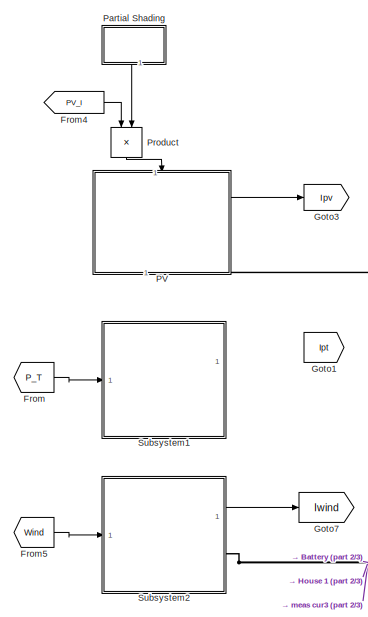
[diagram: root canvas - part 1/3, top left region]
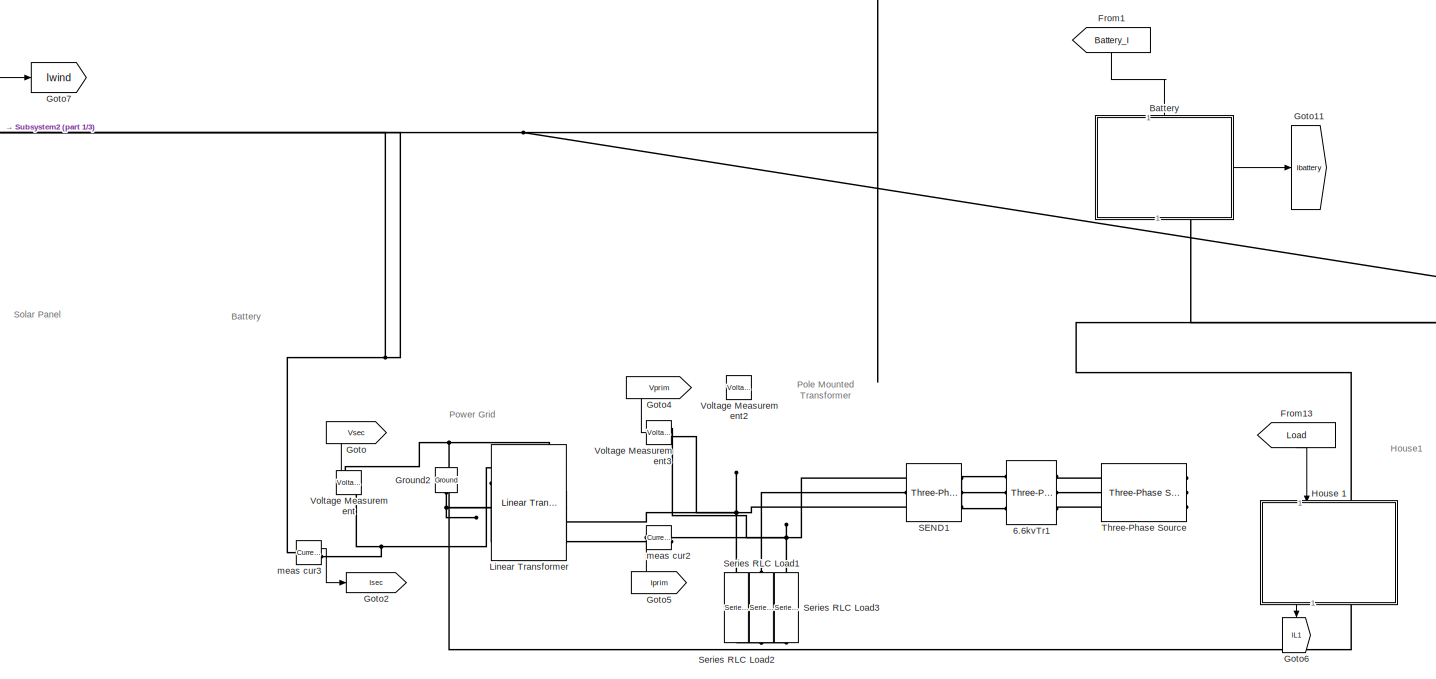
[diagram: root canvas - part 2/3, central region]
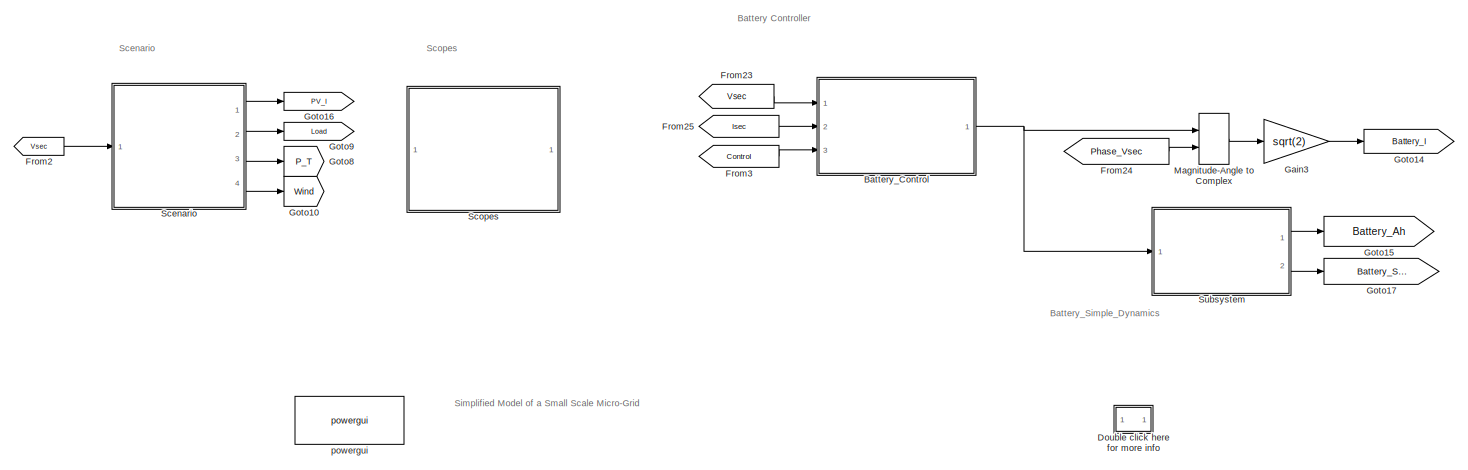
[diagram: root canvas - part 3/3, full width, bottom band]
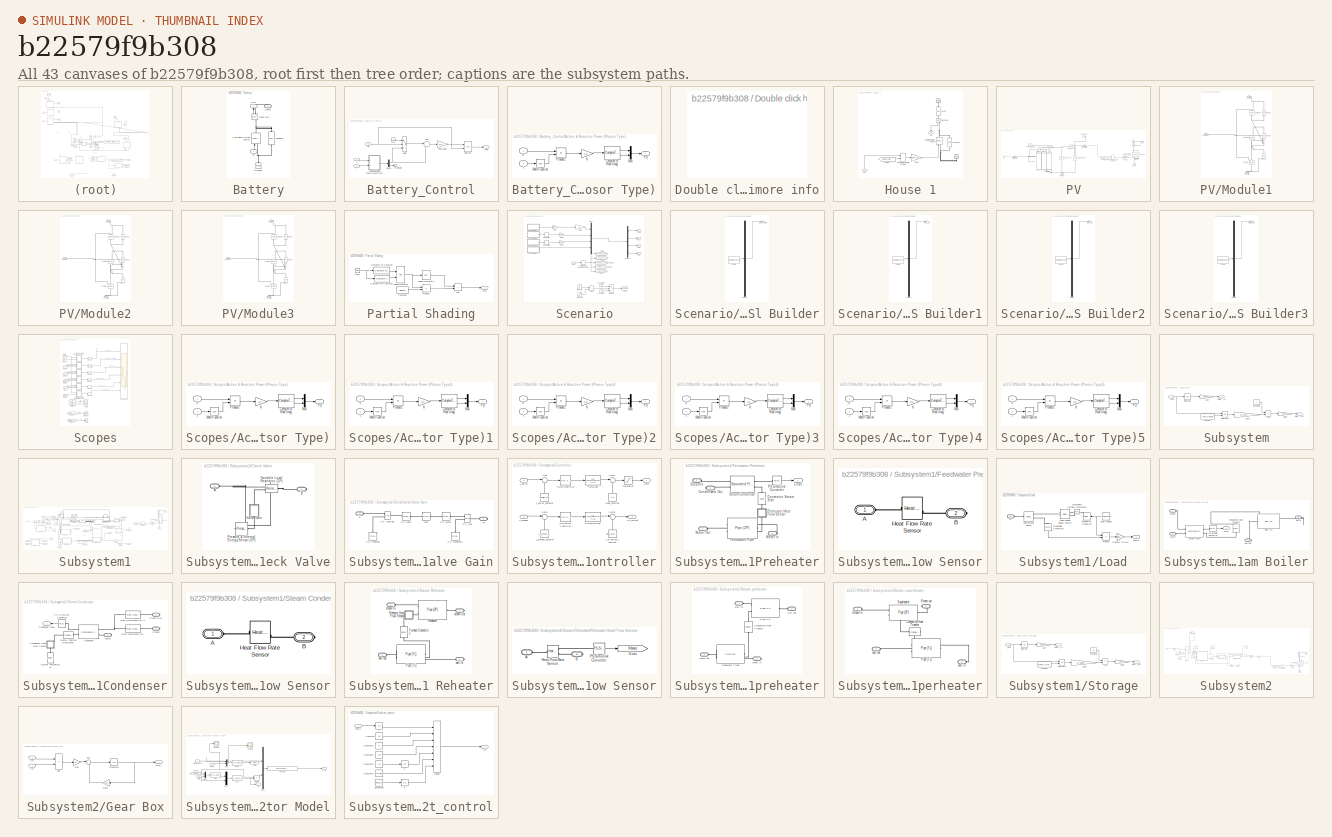
[diagram: thumbnail index - all 43 canvases of the model, root first then tree order]
MODEL slx_b22579f9b308
KIND model
CONFIG AbsTol = auto
CONFIG EnableMultiTasking = off
CONFIG FixedStep = 1/(1000)
CONFIG MaxStep = 60
CONFIG MinStep = auto
CONFIG PreLoadFcn = load('solar_load_data_24h.mat')\n
CONFIG RelTol = 1e-4
CONFIG SampleTimeConstraint = Unconstrained
CONFIG SolverName = ode23t
CONFIG StartTime = 0.0
CONFIG StopTime = 24*60*60
BLOCK [Reference] 6.6kvTr1  REF=powerlib/Elements/Three-Phase
Transformer
(Two Windings)
  NameLocation = top
  Ports = [0, 0, 0, 0, 0, 3, 3]
  SourceBlock = powerlib/Elements/Three-Phase\nTransformer\n(Two Windings)
  SourceProductBaseCode = PS
  SourceType = Three-Phase Transformer (Two Windings)
BLOCK [SubSystem] Battery
  NameLocation = right
  PortSchema = {"entries":[{"content":{"sides":[{"content":{"connectorIds":[]},"type":"ConnectorPlacement.EquallySpacedRectSide","uuid":"c1286172-d85d-4151-a658-d607f2a227c1"},{"content":{"connectorIds":["In1"],"side":"RIGHT"},"type":"ConnectorPlacement.EquallySpacedRectSide","uuid":"b88a66e6-ea34-4253-9f56-045ec6735a8d"},{"content":{"connectorIds":["Out1"],"side":"TOP"},"type":"ConnectorPlacement.EquallySpacedR...<+392ch>
  Ports = [1, 1, 0, 0, 0, 0, 1]
  RequestExecContextInheritance = off
BLOCK [PMIOPort] Battery/Conn1
  NameLocation = right
  Side = Right
BLOCK [Reference] Battery/Controlled Current Source  REF=powerlib/Electrical
Sources/Controlled Current Source
  NameLocation = right
  Ports = [1, 0, 0, 0, 0, 1, 1]
  SourceBlock = powerlib/Electrical\nSources/Controlled Current Source
  SourceProductBaseCode = PS
  SourceType = Controlled Current Source
BLOCK [Reference] Battery/Ground2  REF=powerlib/Elements/Ground
  NameLocation = right
  Ports = [0, 0, 0, 0, 0, 1]
  SourceBlock = powerlib/Elements/Ground
  SourceProductBaseCode = PS
  SourceType = Ground
BLOCK [Inport] Battery/In1
  NameLocation = right
BLOCK [Outport] Battery/Out1
  NameLocation = right
  VectorParamsAs1DForOutWhenUnconnected = off
BLOCK [Reference] Battery/Snubber1  REF=powerlib/Elements/Series RLC Branch
  NameLocation = right
  Ports = [0, 0, 0, 0, 0, 1, 1]
  SourceBlock = powerlib/Elements/Series RLC Branch
  SourceProductBaseCode = PS
  SourceType = Series RLC Branch
BLOCK [Reference] Battery/meas cur3  REF=powerlib/Measurements/Current Measurement
  NameLocation = left
  Ports = [0, 1, 0, 0, 0, 1, 1]
  SourceBlock = powerlib/Measurements/Current Measurement
  SourceProductBaseCode = PS
  SourceType = Current Measurement
BLOCK [SubSystem] Battery_Control
  Ports = [3, 1]
  RequestExecContextInheritance = off
BLOCK [SubSystem] Battery_Control/Active & Reactive Power (Phasor Type)
  DialogController = POWERSYS.PowerSysDialog
  Ports = [2, 1]
  RequestExecContextInheritance = off
BLOCK [ComplexToRealImag] Battery_Control/Active & Reactive Power (Phasor Type)/Complex to Real-Imag
  Ports = [1, 2]
BLOCK [Inport] Battery_Control/Active & Reactive Power (Phasor Type)/I
  Port = 2
BLOCK [Gain] Battery_Control/Active & Reactive Power (Phasor Type)/K
  Gain = 1/2
  OutDataTypeStr = Inherit: Same as input
  ParamDataTypeStr = Inherit: Same as input
  SaturateOnIntegerOverflow = on
BLOCK [Math] Battery_Control/Active & Reactive Power (Phasor Type)/Math Function
  Operator = conj
  Ports = [1, 1]
  SignedPower = on
BLOCK [Mux] Battery_Control/Active & Reactive Power (Phasor Type)/Mux
  DisplayOption = bar
  Inputs = 2
  Ports = [2, 1]
BLOCK [Outport] Battery_Control/Active & Reactive Power (Phasor Type)/PQ
  VectorParamsAs1DForOutWhenUnconnected = off
BLOCK [Product] Battery_Control/Active & Reactive Power (Phasor Type)/Product2
  InputSameDT = on
  OutDataTypeStr = Inherit: Same as first input
  Ports = [2, 1]
  SaturateOnIntegerOverflow = on
BLOCK [Inport] Battery_Control/Active & Reactive Power (Phasor Type)/V
BLOCK [Sum] Battery_Control/Add6
  Inputs = |+-
  Ports = [2, 1]
BLOCK [Demux] Battery_Control/Demux
  Outputs = 2
  Ports = [1, 2]
BLOCK [Inport] Battery_Control/I
  Port = 2
BLOCK [Outport] Battery_Control/I_RMS
  InitialOutput = 0
  OutputWhenDisabled = reset
  VectorParamsAs1DForOutWhenUnconnected = off
BLOCK [Gain] Battery_Control/Integral Gain
  Gain = 0.1
BLOCK [Integrator] Battery_Control/Integrator
  ExternalReset = falling
  LimitOutput = on
  LowerSaturationLimit = -50
  Ports = [2, 1]
  UpperSaturationLimit = 50
BLOCK [Inport] Battery_Control/On
  Port = 3
BLOCK [Constant] Battery_Control/Pref
  NameLocation = top
  Value = 0
BLOCK [Switch] Battery_Control/Switch
  InputSameDT = off
  SaturateOnIntegerOverflow = off
  Threshold = 0.5
BLOCK [Terminator] Battery_Control/Terminator
BLOCK [Inport] Battery_Control/V
BLOCK [SubSystem] Double click here for more info
  OpenFcn = showdemo(bdroot(gcb))
  Ports = []
  RequestExecContextInheritance = off
BLOCK [From] From
  Commented = on
  GotoTag = P_T
  TagVisibility = global
BLOCK [From] From1
  GotoTag = Battery_I
  NameLocation = left
  TagVisibility = global
BLOCK [From] From13
  GotoTag = Load
  NameLocation = left
  TagVisibility = global
BLOCK [From] From2
  GotoTag = Vsec
  TagVisibility = global
BLOCK [From] From23
  GotoTag = Vsec
  TagVisibility = global
BLOCK [From] From24
  GotoTag = Phase_Vsec
  TagVisibility = global
BLOCK [From] From25
  GotoTag = Isec
  TagVisibility = global
BLOCK [From] From3
  GotoTag = Control
  TagVisibility = global
BLOCK [From] From4
  GotoTag = PV_I
  TagVisibility = global
BLOCK [From] From5
  GotoTag = Wind
  TagVisibility = global
BLOCK [Gain] Gain3
  Gain = sqrt(2)
BLOCK [Goto] Goto
  GotoTag = Vsec
  NameLocation = top
  TagVisibility = global
BLOCK [Goto] Goto1
  Commented = on
  GotoTag = Ipt
  TagVisibility = global
BLOCK [Goto] Goto10
  GotoTag = Wind
  TagVisibility = global
BLOCK [Goto] Goto11
  GotoTag = Ibattery
  TagVisibility = global
BLOCK [Goto] Goto14
  GotoTag = Battery_I
  TagVisibility = global
BLOCK [Goto] Goto15
  GotoTag = Battery_Ah
  TagVisibility = global
BLOCK [Goto] Goto16
  GotoTag = PV_I
  TagVisibility = global
BLOCK [Goto] Goto17
  GotoTag = Battery_SOC
  TagVisibility = global
BLOCK [Goto] Goto2
  GotoTag = Isec
  TagVisibility = global
BLOCK [Goto] Goto3
  GotoTag = Ipv
  TagVisibility = global
BLOCK [Goto] Goto4
  GotoTag = Vprim
  NameLocation = top
  TagVisibility = global
BLOCK [Goto] Goto5
  GotoTag = Iprim
  NameLocation = top
  TagVisibility = global
BLOCK [Goto] Goto6
  GotoTag = IL1
  NameLocation = left
  TagVisibility = global
BLOCK [Goto] Goto7
  GotoTag = Iwind
  TagVisibility = global
BLOCK [Goto] Goto8
  GotoTag = P_T
  TagVisibility = global
BLOCK [Goto] Goto9
  GotoTag = Load
  TagVisibility = global
BLOCK [Reference] Ground2  REF=powerlib/Elements/Ground
  NameLocation = left
  Ports = [0, 0, 0, 0, 0, 1]
  SourceBlock = powerlib/Elements/Ground
  SourceProductBaseCode = PS
  SourceType = Ground
BLOCK [SubSystem] House 1
  NameLocation = right
  Ports = [1, 1, 0, 0, 0, 1, 1]
  RequestExecContextInheritance = off
BLOCK [PMIOPort] House 1/Conn1
  NameLocation = right
  Side = Left
BLOCK [PMIOPort] House 1/Conn2
  NameLocation = right
  Port = 2
  Side = Right
BLOCK [Reference] House 1/Controlled Current Source4  REF=powerlib/Electrical
Sources/Controlled Current Source
  NameLocation = right
  Ports = [1, 0, 0, 0, 0, 1, 1]
  SourceBlock = powerlib/Electrical\nSources/Controlled Current Source
  SourceProductBaseCode = PS
  SourceType = Controlled Current Source
BLOCK [From] House 1/From24
  GotoTag = Phase_Vload
BLOCK [Gain] House 1/Gain3
  Gain = sqrt(2)
BLOCK [Inport] House 1/In1
  NameLocation = right
BLOCK [Reference] House 1/Load2  REF=powerlib/Elements/Series RLC Branch
  NameLocation = right
  Ports = [0, 0, 0, 0, 0, 1, 1]
  SourceBlock = powerlib/Elements/Series RLC Branch
  SourceProductBaseCode = PS
  SourceType = Series RLC Branch
BLOCK [MagnitudeAngleToComplex] House 1/Magnitude-Angle to Complex
  Ports = [2, 1]
BLOCK [Outport] House 1/Out1
  NameLocation = right
  VectorParamsAs1DForOutWhenUnconnected = off
BLOCK [Reference] House 1/Snubber3  REF=powerlib/Elements/Series RLC Branch
  NameLocation = right
  Ports = [0, 0, 0, 0, 0, 1, 1]
  SourceBlock = powerlib/Elements/Series RLC Branch
  SourceProductBaseCode = PS
  SourceType = Series RLC Branch
BLOCK [Reference] House 1/meas cur2  REF=powerlib/Measurements/Current Measurement
  NameLocation = right
  Ports = [0, 1, 0, 0, 0, 1, 1]
  SourceBlock = powerlib/Measurements/Current Measurement
  SourceProductBaseCode = PS
  SourceType = Current Measurement
BLOCK [Reference] Linear Transformer  REF=powerlib/Elements/Linear Transformer
  NameLocation = top
  Ports = [0, 0, 0, 0, 0, 2, 4]
  SourceBlock = powerlib/Elements/Linear Transformer
  SourceProductBaseCode = PS
  SourceType = Linear Transformer
BLOCK [MagnitudeAngleToComplex] Magnitude-Angle to Complex
  Ports = [2, 1]
BLOCK [SubSystem] PV
  NameLocation = left
  PortSchema = {"entries":[{"content":{"sides":[{"content":{"connectorIds":["In1"]},"type":"ConnectorPlacement.EquallySpacedRectSide","uuid":"c1286172-d85d-4151-a658-d607f2a227c1"},{"content":{"connectorIds":[],"side":"RIGHT"},"type":"ConnectorPlacement.EquallySpacedRectSide","uuid":"b88a66e6-ea34-4253-9f56-045ec6735a8d"},{"content":{"connectorIds":[],"side":"TOP"},"type":"ConnectorPlacement.EquallySpacedRectSid...<+393ch>
  Ports = [1, 1, 0, 0, 0, 0, 1]
  RequestExecContextInheritance = off
BLOCK [PMIOPort] PV/Conn1
  NameLocation = right
  Side = Right
BLOCK [Reference] PV/Controlled Current Source1  REF=powerlib/Electrical
Sources/Controlled Current Source
  NameLocation = right
  Ports = [1, 0, 0, 0, 0, 1, 1]
  SourceBlock = powerlib/Electrical\nSources/Controlled Current Source
  SourceProductBaseCode = PS
  SourceType = Controlled Current Source
BLOCK [Reference] PV/Current Sensor  REF=fl_lib/Electrical/Electrical Sensors/Current Sensor
  Ports = [0, 0, 0, 0, 0, 1, 2]
  SourceBlock = fl_lib/Electrical/Electrical Sensors/Current Sensor
  SourceProductBaseCode = SS
  SourceType = Current Sensor
BLOCK [Reference] PV/Diode1  REF=ee_lib/Semiconductors &
Converters/Diode
  NameLocation = right
  Ports = [0, 0, 0, 0, 0, 1, 1]
  SourceBlock = ee_lib/Semiconductors &\nConverters/Diode
  SourceProductBaseCode = PS
  SourceType = Diode
BLOCK [Reference] PV/Diode2  REF=ee_lib/Semiconductors &
Converters/Diode
  NameLocation = right
  Ports = [0, 0, 0, 0, 0, 1, 1]
  SourceBlock = ee_lib/Semiconductors &\nConverters/Diode
  SourceProductBaseCode = PS
  SourceType = Diode
BLOCK [Reference] PV/Diode3  REF=ee_lib/Semiconductors &
Converters/Diode
  NameLocation = right
  Ports = [0, 0, 0, 0, 0, 1, 1]
  SourceBlock = ee_lib/Semiconductors &\nConverters/Diode
  SourceProductBaseCode = PS
  SourceType = Diode
BLOCK [Reference] PV/Electrical Reference  REF=fl_lib/Electrical/Electrical Elements/Electrical Reference
  NameLocation = right
  Ports = [0, 0, 0, 0, 0, 1]
  SourceBlock = fl_lib/Electrical/Electrical Elements/Electrical Reference
  SourceProductBaseCode = SS
  SourceType = Electrical Reference
BLOCK [From] PV/From24
  GotoTag = Phase_pv
  TagVisibility = global
BLOCK [Gain] PV/Gain3
  Gain = sqrt(2)
BLOCK [Reference] PV/Ground2  REF=powerlib/Elements/Ground
  NameLocation = right
  Ports = [0, 0, 0, 0, 0, 1]
  SourceBlock = powerlib/Elements/Ground
  SourceProductBaseCode = PS
  SourceType = Ground
BLOCK [Inport] PV/In1
BLOCK [MagnitudeAngleToComplex] PV/Magnitude-Angle to Complex
  Ports = [2, 1]
BLOCK [SubSystem] PV/Module1
  PortSchema = {"entries":[{"content":{"sides":[{"content":{"connectorIds":["LConn1"]},"type":"ConnectorPlacement.EquallySpacedRectSide","uuid":"ab66651e-609a-459c-9d92-4a21cc3a8387"},{"content":{"connectorIds":[],"side":"RIGHT"},"type":"ConnectorPlacement.EquallySpacedRectSide","uuid":"9128ca8b-245e-4b88-89cc-48151ac1f427"},{"content":{"connectorIds":["LConn2"],"side":"TOP"},"type":"ConnectorPlacement.EquallySp...<+397ch>  <repeated x3 — deduplicated; at blocks: Module1, Module2, Module3>
  Ports = [0, 0, 0, 0, 0, 2, 1]
  RequestExecContextInheritance = off
BLOCK [Reference] PV/Module1/Diode2  REF=fl_lib/Electrical/Electrical Elements/Diode
  NameLocation = right
  Ports = [0, 0, 0, 0, 0, 1, 1]
  SourceBlock = fl_lib/Electrical/Electrical Elements/Diode
  SourceProductBaseCode = SS
  SourceType = Diode
BLOCK [Reference] PV/Module1/Diode3  REF=fl_lib/Electrical/Electrical Elements/Diode
  NameLocation = right
  Ports = [0, 0, 0, 0, 0, 1, 1]
  SourceBlock = fl_lib/Electrical/Electrical Elements/Diode
  SourceProductBaseCode = SS
  SourceType = Diode
BLOCK [Reference] PV/Module1/Diode4  REF=fl_lib/Electrical/Electrical Elements/Diode
  NameLocation = right
  Ports = [0, 0, 0, 0, 0, 1, 1]
  SourceBlock = fl_lib/Electrical/Electrical Elements/Diode
  SourceProductBaseCode = SS
  SourceType = Diode
BLOCK [Reference] PV/Module1/Solar Cell  REF=ee_lib/Sources/Solar Cell
  NameLocation = right
  Ports = [0, 0, 0, 0, 0, 2, 1]
  SourceBlock = ee_lib/Sources/Solar Cell
  SourceProductBaseCode = PS
  SourceType = Solar Cell
BLOCK [Reference] PV/Module1/Solar Cell1  REF=ee_lib/Sources/Solar Cell
  NameLocation = right
  Ports = [0, 0, 0, 0, 0, 2, 1]
  SourceBlock = ee_lib/Sources/Solar Cell
  SourceProductBaseCode = PS
  SourceType = Solar Cell
BLOCK [Reference] PV/Module1/Solar Cell2  REF=ee_lib/Sources/Solar Cell
  NameLocation = right
  Ports = [0, 0, 0, 0, 0, 2, 1]
  SourceBlock = ee_lib/Sources/Solar Cell
  SourceProductBaseCode = PS
  SourceType = Solar Cell
BLOCK [PMIOPort] PV/Module1/constant
  Side = Left
BLOCK [PMIOPort] PV/Module1/negative
  Port = 3
  Side = Right
BLOCK [PMIOPort] PV/Module1/positive
  Port = 2
  Side = Left
BLOCK [SubSystem] PV/Module2
  Ports = [0, 0, 0, 0, 0, 2, 1]
  RequestExecContextInheritance = off
BLOCK [Reference] PV/Module2/Diode2  REF=fl_lib/Electrical/Electrical Elements/Diode
  NameLocation = right
  Ports = [0, 0, 0, 0, 0, 1, 1]
  SourceBlock = fl_lib/Electrical/Electrical Elements/Diode
  SourceProductBaseCode = SS
  SourceType = Diode
BLOCK [Reference] PV/Module2/Diode3  REF=fl_lib/Electrical/Electrical Elements/Diode
  NameLocation = right
  Ports = [0, 0, 0, 0, 0, 1, 1]
  SourceBlock = fl_lib/Electrical/Electrical Elements/Diode
  SourceProductBaseCode = SS
  SourceType = Diode
BLOCK [Reference] PV/Module2/Diode4  REF=fl_lib/Electrical/Electrical Elements/Diode
  NameLocation = right
  Ports = [0, 0, 0, 0, 0, 1, 1]
  SourceBlock = fl_lib/Electrical/Electrical Elements/Diode
  SourceProductBaseCode = SS
  SourceType = Diode
BLOCK [Reference] PV/Module2/Solar Cell  REF=ee_lib/Sources/Solar Cell
  NameLocation = right
  Ports = [0, 0, 0, 0, 0, 2, 1]
  SourceBlock = ee_lib/Sources/Solar Cell
  SourceProductBaseCode = PS
  SourceType = Solar Cell
BLOCK [Reference] PV/Module2/Solar Cell1  REF=ee_lib/Sources/Solar Cell
  NameLocation = right
  Ports = [0, 0, 0, 0, 0, 2, 1]
  SourceBlock = ee_lib/Sources/Solar Cell
  SourceProductBaseCode = PS
  SourceType = Solar Cell
BLOCK [Reference] PV/Module2/Solar Cell2  REF=ee_lib/Sources/Solar Cell
  NameLocation = right
  Ports = [0, 0, 0, 0, 0, 2, 1]
  SourceBlock = ee_lib/Sources/Solar Cell
  SourceProductBaseCode = PS
  SourceType = Solar Cell
BLOCK [PMIOPort] PV/Module2/constant
  Side = Left
BLOCK [PMIOPort] PV/Module2/negative
  Port = 3
  Side = Right
BLOCK [PMIOPort] PV/Module2/positive
  Port = 2
  Side = Left
BLOCK [SubSystem] PV/Module3
  Ports = [0, 0, 0, 0, 0, 2, 1]
  RequestExecContextInheritance = off
BLOCK [Reference] PV/Module3/Diode2  REF=fl_lib/Electrical/Electrical Elements/Diode
  NameLocation = right
  Ports = [0, 0, 0, 0, 0, 1, 1]
  SourceBlock = fl_lib/Electrical/Electrical Elements/Diode
  SourceProductBaseCode = SS
  SourceType = Diode
BLOCK [Reference] PV/Module3/Diode3  REF=fl_lib/Electrical/Electrical Elements/Diode
  NameLocation = right
  Ports = [0, 0, 0, 0, 0, 1, 1]
  SourceBlock = fl_lib/Electrical/Electrical Elements/Diode
  SourceProductBaseCode = SS
  SourceType = Diode
BLOCK [Reference] PV/Module3/Diode4  REF=fl_lib/Electrical/Electrical Elements/Diode
  NameLocation = right
  Ports = [0, 0, 0, 0, 0, 1, 1]
  SourceBlock = fl_lib/Electrical/Electrical Elements/Diode
  SourceProductBaseCode = SS
  SourceType = Diode
BLOCK [Reference] PV/Module3/Solar Cell  REF=ee_lib/Sources/Solar Cell
  NameLocation = right
  Ports = [0, 0, 0, 0, 0, 2, 1]
  SourceBlock = ee_lib/Sources/Solar Cell
  SourceProductBaseCode = PS
  SourceType = Solar Cell
BLOCK [Reference] PV/Module3/Solar Cell1  REF=ee_lib/Sources/Solar Cell
  NameLocation = right
  Ports = [0, 0, 0, 0, 0, 2, 1]
  SourceBlock = ee_lib/Sources/Solar Cell
  SourceProductBaseCode = PS
  SourceType = Solar Cell
BLOCK [Reference] PV/Module3/Solar Cell2  REF=ee_lib/Sources/Solar Cell
  NameLocation = right
  Ports = [0, 0, 0, 0, 0, 2, 1]
  SourceBlock = ee_lib/Sources/Solar Cell
  SourceProductBaseCode = PS
  SourceType = Solar Cell
BLOCK [PMIOPort] PV/Module3/constant
  Side = Left
BLOCK [PMIOPort] PV/Module3/negative
  Port = 3
  Side = Right
BLOCK [PMIOPort] PV/Module3/positive
  Port = 2
  Side = Left
BLOCK [Outport] PV/Out1
  NameLocation = right
  VectorParamsAs1DForOutWhenUnconnected = off
BLOCK [Reference] PV/PS Constant1  REF=fl_lib/Physical Signals/Sources/PS Constant
  Ports = [0, 0, 0, 0, 0, 0, 1]
  SourceBlock = fl_lib/Physical Signals/Sources/PS Constant
  SourceProductBaseCode = SS
  SourceType = PS Constant
BLOCK [Reference] PV/PS-Simulink Converter1  REF=nesl_utility/PS-Simulink
Converter
  Ports = [0, 1, 0, 0, 0, 1]
  SourceBlock = nesl_utility/PS-Simulink\nConverter
  SourceProductBaseCode = SS
  SourceType = PS-Simulink\nConverter
BLOCK [Reference] PV/Simulink-PS Converter  REF=nesl_utility/Simulink-PS
Converter
  Ports = [1, 0, 0, 0, 0, 0, 1]
  SourceBlock = nesl_utility/Simulink-PS\nConverter
  SourceProductBaseCode = SS
  SourceType = Simulink-PS\nConverter
BLOCK [Reference] PV/Snubber2  REF=powerlib/Elements/Series RLC Branch
  NameLocation = right
  Ports = [0, 0, 0, 0, 0, 1, 1]
  SourceBlock = powerlib/Elements/Series RLC Branch
  SourceProductBaseCode = PS
  SourceType = Series RLC Branch
BLOCK [Reference] PV/Solver Configuration  REF=nesl_utility/Solver
Configuration
  Ports = [0, 0, 0, 0, 0, 0, 1]
  SourceBlock = nesl_utility/Solver\nConfiguration
  SourceProductBaseCode = SS
  SourceType = Solver\nConfiguration
BLOCK [Reference] PV/Variable Resistor  REF=fl_lib/Electrical/Electrical Elements/Variable Resistor
  NameLocation = left
  Ports = [0, 0, 0, 0, 0, 2, 1]
  SourceBlock = fl_lib/Electrical/Electrical Elements/Variable Resistor
  SourceProductBaseCode = SS
  SourceType = Variable Resistor
BLOCK [Reference] PV/Voltage Sensor  REF=fl_lib/Electrical/Electrical Sensors/Voltage Sensor
  NameLocation = right
  Ports = [0, 0, 0, 0, 0, 1, 2]
  SourceBlock = fl_lib/Electrical/Electrical Sensors/Voltage Sensor
  SourceProductBaseCode = SS
  SourceType = Voltage Sensor
BLOCK [Reference] PV/meas cur1  REF=powerlib/Measurements/Current Measurement
  NameLocation = left
  Ports = [0, 1, 0, 0, 0, 1, 1]
  SourceBlock = powerlib/Measurements/Current Measurement
  SourceProductBaseCode = PS
  SourceType = Current Measurement
BLOCK [SubSystem] Partial Shading
  NameLocation = left
  Ports = [0, 1]
  RequestExecContextInheritance = off
BLOCK [Sum] Partial Shading/Add
  IconShape = rectangular
  Ports = [2, 1]
BLOCK [Clock] Partial Shading/Clock
  Decimation = 1
BLOCK [Reference] Partial Shading/Compare To Constant  REF=simulink/Logic and Bit
Operations/Compare
To Constant
  Ports = [1, 1]
  SourceBlock = simulink/Logic and Bit\nOperations/Compare\nTo Constant
  SourceProductBaseCode = SL
  SourceType = Compare To Constant
BLOCK [Reference] Partial Shading/Compare To Constant1  REF=simulink/Logic and Bit
Operations/Compare
To Constant
  Ports = [1, 1]
  SourceBlock = simulink/Logic and Bit\nOperations/Compare\nTo Constant
  SourceProductBaseCode = SL
  SourceType = Compare To Constant
BLOCK [Constant] Partial Shading/Constant
  Value = Factor
BLOCK [Logic] Partial Shading/Logical Operator
  AllPortsSameDT = off
  OutDataTypeStr = float('double')
  Ports = [2, 1]
BLOCK [Logic] Partial Shading/Logical Operator1
  AllPortsSameDT = off
  Operator = NOT
  OutDataTypeStr = float('double')
  Ports = [1, 1]
BLOCK [Outport] Partial Shading/Out
  VectorParamsAs1DForOutWhenUnconnected = off
BLOCK [Product] Partial Shading/Product
  Ports = [2, 1]
BLOCK [Product] Product
  NameLocation = left
  Ports = [2, 1]
BLOCK [Reference] SEND1  REF=powerlib/Elements/Three-Phase
PI Section Line
  AttributesFormatString = \n
  NameLocation = top
  Ports = [0, 0, 0, 0, 0, 3, 3]
  SourceBlock = powerlib/Elements/Three-Phase\nPI Section Line
  SourceProductBaseCode = PS
  SourceType = Three-Phase PI Section Line
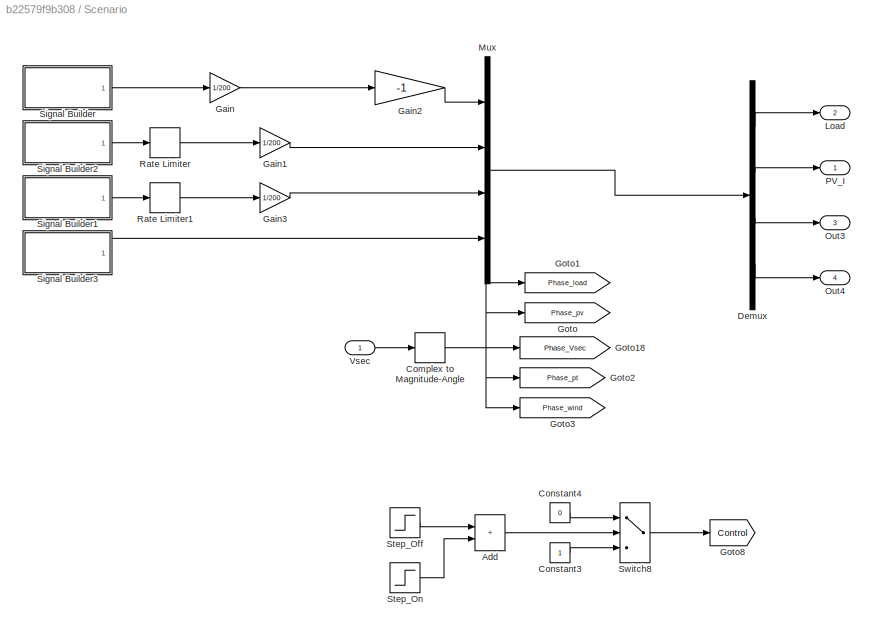
BLOCK [SubSystem] Scenario
  Ports = [1, 4]
  RequestExecContextInheritance = off
BLOCK [Sum] Scenario/Add
  IconShape = rectangular
  Ports = [2, 1]
BLOCK [ComplexToMagnitudeAngle] Scenario/Complex to Magnitude-Angle
  Output = Angle
  Ports = [1, 1]
BLOCK [Constant] Scenario/Constant3
BLOCK [Constant] Scenario/Constant4
  Value = 0
BLOCK [Demux] Scenario/Demux
  Ports = [1, 4]
BLOCK [Gain] Scenario/Gain
  Gain = 1/200
BLOCK [Gain] Scenario/Gain1
  Gain = 1/200
BLOCK [Gain] Scenario/Gain2
  Gain = -1
BLOCK [Gain] Scenario/Gain3
  Gain = 1/200
BLOCK [Goto] Scenario/Goto
  GotoTag = Phase_pv
  TagVisibility = global
BLOCK [Goto] Scenario/Goto1
  GotoTag = Phase_load
  TagVisibility = global
BLOCK [Goto] Scenario/Goto18
  GotoTag = Phase_Vsec
  TagVisibility = global
BLOCK [Goto] Scenario/Goto2
  GotoTag = Phase_pt
  TagVisibility = global
BLOCK [Goto] Scenario/Goto3
  GotoTag = Phase_wind
  TagVisibility = global
BLOCK [Goto] Scenario/Goto8
  GotoTag = Control
  TagVisibility = global
BLOCK [Outport] Scenario/Load
  Port = 2
  VectorParamsAs1DForOutWhenUnconnected = off
BLOCK [Mux] Scenario/Mux
  DisplayOption = bar
  Ports = [4, 1]
BLOCK [Outport] Scenario/Out3
  Port = 3
BLOCK [Outport] Scenario/Out4
  Port = 4
BLOCK [Outport] Scenario/PV_I
  VectorParamsAs1DForOutWhenUnconnected = off
BLOCK [RateLimiter] Scenario/Rate Limiter
  FallingSlewLimit = -0.1
  RisingSlewLimit = 0.1
  SampleTimeMode = inherited
BLOCK [RateLimiter] Scenario/Rate Limiter1
  FallingSlewLimit = -0.5
  RisingSlewLimit = 0.5
  SampleTimeMode = inherited
BLOCK [SubSystem] Scenario/Signal Builder
  ClipboardFcn = sigbuilder_block('clipboard');
  CloseFcn = sigbuilder_block('close');
  ContinueFcn = sigbuilder_block('continue');
  CopyFcn = sigbuilder_block('copy');
  DeleteFcn = sigbuilder_block('delete');
  LoadFcn = sigbuilder_block('load');
  MaskHideContents = on
  ModelCloseFcn = sigbuilder_block('modelClose');
  NameChangeFcn = sigbuilder_block('namechange');
  OpenFcn = sigbuilder_block('open',[437.6 199.2 550.4 400 ]);
  PauseFcn = sigbuilder_block('pause');
  Ports = [0, 1]
  PreSaveFcn = sigbuilder_block('preSave');
  RequestExecContextInheritance = off
  StartFcn = sigbuilder_block('start');
  StopFcn = sigbuilder_block('stop');
  Tag = STV Subsys
BLOCK [Demux] Scenario/Signal Builder/Demux
  DisplayOption = none
  Outputs = 1
  Ports = [1, 1]
  Tag = STV Demux
BLOCK [FromWorkspace] Scenario/Signal Builder/FromWs
  Tag = STV FromWs
  VariableName = tuvar
BLOCK [Outport] Scenario/Signal Builder/demand(MW)
  Tag = STV Outport
BLOCK [SubSystem] Scenario/Signal Builder1
  ClipboardFcn = sigbuilder_block('clipboard');
  CloseFcn = sigbuilder_block('close');
  ContinueFcn = sigbuilder_block('continue');
  CopyFcn = sigbuilder_block('copy');
  DeleteFcn = sigbuilder_block('delete');
  LoadFcn = sigbuilder_block('load');
  MaskHideContents = on
  ModelCloseFcn = sigbuilder_block('modelClose');
  NameChangeFcn = sigbuilder_block('namechange');
  OpenFcn = sigbuilder_block('open',[437.6 199.2 550.4 400 ]);
  PauseFcn = sigbuilder_block('pause');
  Ports = [0, 1]
  PreSaveFcn = sigbuilder_block('preSave');
  RequestExecContextInheritance = off
  StartFcn = sigbuilder_block('start');
  StopFcn = sigbuilder_block('stop');
  Tag = STV Subsys
BLOCK [Outport] Scenario/Signal Builder1/DNI_Avg
  Tag = STV Outport
BLOCK [Demux] Scenario/Signal Builder1/Demux
  DisplayOption = none
  Outputs = 1
  Ports = [1, 1]
  Tag = STV Demux
BLOCK [FromWorkspace] Scenario/Signal Builder1/FromWs
  Tag = STV FromWs
  VariableName = tuvar
BLOCK [SubSystem] Scenario/Signal Builder2
  ClipboardFcn = sigbuilder_block('clipboard');
  CloseFcn = sigbuilder_block('close');
  ContinueFcn = sigbuilder_block('continue');
  CopyFcn = sigbuilder_block('copy');
  DeleteFcn = sigbuilder_block('delete');
  LoadFcn = sigbuilder_block('load');
  MaskHideContents = on
  ModelCloseFcn = sigbuilder_block('modelClose');
  NameChangeFcn = sigbuilder_block('namechange');
  OpenFcn = sigbuilder_block('open',[437.6 199.2 550.4 400 ]);
  PauseFcn = sigbuilder_block('pause');
  Ports = [0, 1]
  PreSaveFcn = sigbuilder_block('preSave');
  RequestExecContextInheritance = off
  StartFcn = sigbuilder_block('start');
  StopFcn = sigbuilder_block('stop');
  Tag = STV Subsys
BLOCK [Outport] Scenario/Signal Builder2/DNI_Avg
  Tag = STV Outport
BLOCK [Demux] Scenario/Signal Builder2/Demux
  DisplayOption = none
  Outputs = 1
  Ports = [1, 1]
  Tag = STV Demux
BLOCK [FromWorkspace] Scenario/Signal Builder2/FromWs
  Tag = STV FromWs
  VariableName = tuvar
BLOCK [SubSystem] Scenario/Signal Builder3
  ClipboardFcn = sigbuilder_block('clipboard');
  CloseFcn = sigbuilder_block('close');
  ContinueFcn = sigbuilder_block('continue');
  CopyFcn = sigbuilder_block('copy');
  DeleteFcn = sigbuilder_block('delete');
  LoadFcn = sigbuilder_block('load');
  MaskHideContents = on
  ModelCloseFcn = sigbuilder_block('modelClose');
  NameChangeFcn = sigbuilder_block('namechange');
  OpenFcn = sigbuilder_block('open',[437.6 199.2 550.4 400 ]);
  PauseFcn = sigbuilder_block('pause');
  Ports = [0, 1]
  PreSaveFcn = sigbuilder_block('preSave');
  RequestExecContextInheritance = off
  StartFcn = sigbuilder_block('start');
  StopFcn = sigbuilder_block('stop');
  Tag = STV Subsys
BLOCK [Demux] Scenario/Signal Builder3/Demux
  DisplayOption = none
  Outputs = 1
  Ports = [1, 1]
  Tag = STV Demux
BLOCK [FromWorkspace] Scenario/Signal Builder3/FromWs
  Tag = STV FromWs
  VariableName = tuvar
BLOCK [Outport] Scenario/Signal Builder3/wind(km//h)
  Tag = STV Outport
BLOCK [Step] Scenario/Step_Off
  SampleTime = 0
  Time = 12*60*60
BLOCK [Step] Scenario/Step_On
  After = -1
  SampleTime = 0
  Time = 18*60*60
BLOCK [Switch] Scenario/Switch8
  InputSameDT = off
  SaturateOnIntegerOverflow = off
  Threshold = 1
BLOCK [Inport] Scenario/Vsec
BLOCK [SubSystem] Scopes
  Ports = []
  RequestExecContextInheritance = off
BLOCK [SubSystem] Scopes/Active & Reactive Power (Phasor Type)
  DialogController = POWERSYS.PowerSysDialog
  Ports = [2, 1]
  RequestExecContextInheritance = off
BLOCK [ComplexToRealImag] Scopes/Active & Reactive Power (Phasor Type)/Complex to Real-Imag
  Ports = [1, 2]
BLOCK [Inport] Scopes/Active & Reactive Power (Phasor Type)/I
  Port = 2
BLOCK [Gain] Scopes/Active & Reactive Power (Phasor Type)/K
  Gain = 1/2
  OutDataTypeStr = Inherit: Same as input
  ParamDataTypeStr = Inherit: Same as input
  SaturateOnIntegerOverflow = on
BLOCK [Math] Scopes/Active & Reactive Power (Phasor Type)/Math Function
  Operator = conj
  Ports = [1, 1]
  SignedPower = on
BLOCK [Mux] Scopes/Active & Reactive Power (Phasor Type)/Mux
  DisplayOption = bar
  Inputs = 2
  Ports = [2, 1]
BLOCK [Outport] Scopes/Active & Reactive Power (Phasor Type)/PQ
  VectorParamsAs1DForOutWhenUnconnected = off
BLOCK [Product] Scopes/Active & Reactive Power (Phasor Type)/Product2
  InputSameDT = on
  OutDataTypeStr = Inherit: Same as first input
  Ports = [2, 1]
  SaturateOnIntegerOverflow = on
BLOCK [Inport] Scopes/Active & Reactive Power (Phasor Type)/V
BLOCK [SubSystem] Scopes/Active & Reactive Power (Phasor Type)1
  DialogController = POWERSYS.PowerSysDialog
  Ports = [2, 1]
  RequestExecContextInheritance = off
BLOCK [ComplexToRealImag] Scopes/Active & Reactive Power (Phasor Type)1/Complex to Real-Imag
  Ports = [1, 2]
BLOCK [Inport] Scopes/Active & Reactive Power (Phasor Type)1/I
  Port = 2
BLOCK [Gain] Scopes/Active & Reactive Power (Phasor Type)1/K
  Gain = 1/2
  OutDataTypeStr = Inherit: Same as input
  ParamDataTypeStr = Inherit: Same as input
  SaturateOnIntegerOverflow = on
BLOCK [Math] Scopes/Active & Reactive Power (Phasor Type)1/Math Function
  Operator = conj
  Ports = [1, 1]
  SignedPower = on
BLOCK [Mux] Scopes/Active & Reactive Power (Phasor Type)1/Mux
  DisplayOption = bar
  Inputs = 2
  Ports = [2, 1]
BLOCK [Outport] Scopes/Active & Reactive Power (Phasor Type)1/PQ
  VectorParamsAs1DForOutWhenUnconnected = off
BLOCK [Product] Scopes/Active & Reactive Power (Phasor Type)1/Product2
  InputSameDT = on
  OutDataTypeStr = Inherit: Same as first input
  Ports = [2, 1]
  SaturateOnIntegerOverflow = on
BLOCK [Inport] Scopes/Active & Reactive Power (Phasor Type)1/V
BLOCK [SubSystem] Scopes/Active & Reactive Power (Phasor Type)2
  DialogController = POWERSYS.PowerSysDialog
  Ports = [2, 1]
  RequestExecContextInheritance = off
BLOCK [ComplexToRealImag] Scopes/Active & Reactive Power (Phasor Type)2/Complex to Real-Imag
  Ports = [1, 2]
BLOCK [Inport] Scopes/Active & Reactive Power (Phasor Type)2/I
  Port = 2
BLOCK [Gain] Scopes/Active & Reactive Power (Phasor Type)2/K
  Gain = 1/2
  OutDataTypeStr = Inherit: Same as input
  ParamDataTypeStr = Inherit: Same as input
  SaturateOnIntegerOverflow = on
BLOCK [Math] Scopes/Active & Reactive Power (Phasor Type)2/Math Function
  Operator = conj
  Ports = [1, 1]
  SignedPower = on
BLOCK [Mux] Scopes/Active & Reactive Power (Phasor Type)2/Mux
  DisplayOption = bar
  Inputs = 2
  Ports = [2, 1]
BLOCK [Outport] Scopes/Active & Reactive Power (Phasor Type)2/PQ
  VectorParamsAs1DForOutWhenUnconnected = off
BLOCK [Product] Scopes/Active & Reactive Power (Phasor Type)2/Product2
  InputSameDT = on
  OutDataTypeStr = Inherit: Same as first input
  Ports = [2, 1]
  SaturateOnIntegerOverflow = on
BLOCK [Inport] Scopes/Active & Reactive Power (Phasor Type)2/V
BLOCK [SubSystem] Scopes/Active & Reactive Power (Phasor Type)3
  DialogController = POWERSYS.PowerSysDialog
  Ports = [2, 1]
  RequestExecContextInheritance = off
BLOCK [ComplexToRealImag] Scopes/Active & Reactive Power (Phasor Type)3/Complex to Real-Imag
  Ports = [1, 2]
BLOCK [Inport] Scopes/Active & Reactive Power (Phasor Type)3/I
  Port = 2
BLOCK [Gain] Scopes/Active & Reactive Power (Phasor Type)3/K
  Gain = 1/2
  OutDataTypeStr = Inherit: Same as input
  ParamDataTypeStr = Inherit: Same as input
  SaturateOnIntegerOverflow = on
BLOCK [Math] Scopes/Active & Reactive Power (Phasor Type)3/Math Function
  Operator = conj
  Ports = [1, 1]
  SignedPower = on
BLOCK [Mux] Scopes/Active & Reactive Power (Phasor Type)3/Mux
  DisplayOption = bar
  Inputs = 2
  Ports = [2, 1]
BLOCK [Outport] Scopes/Active & Reactive Power (Phasor Type)3/PQ
  VectorParamsAs1DForOutWhenUnconnected = off
BLOCK [Product] Scopes/Active & Reactive Power (Phasor Type)3/Product2
  InputSameDT = on
  OutDataTypeStr = Inherit: Same as first input
  Ports = [2, 1]
  SaturateOnIntegerOverflow = on
BLOCK [Inport] Scopes/Active & Reactive Power (Phasor Type)3/V
BLOCK [SubSystem] Scopes/Active & Reactive Power (Phasor Type)4
  DialogController = POWERSYS.PowerSysDialog
  Ports = [2, 1]
  RequestExecContextInheritance = off
BLOCK [ComplexToRealImag] Scopes/Active & Reactive Power (Phasor Type)4/Complex to Real-Imag
  Ports = [1, 2]
BLOCK [Inport] Scopes/Active & Reactive Power (Phasor Type)4/I
  Port = 2
BLOCK [Gain] Scopes/Active & Reactive Power (Phasor Type)4/K
  Gain = 1/2
  OutDataTypeStr = Inherit: Same as input
  ParamDataTypeStr = Inherit: Same as input
  SaturateOnIntegerOverflow = on
BLOCK [Math] Scopes/Active & Reactive Power (Phasor Type)4/Math Function
  Operator = conj
  Ports = [1, 1]
  SignedPower = on
BLOCK [Mux] Scopes/Active & Reactive Power (Phasor Type)4/Mux
  DisplayOption = bar
  Inputs = 2
  Ports = [2, 1]
BLOCK [Outport] Scopes/Active & Reactive Power (Phasor Type)4/PQ
  VectorParamsAs1DForOutWhenUnconnected = off
BLOCK [Product] Scopes/Active & Reactive Power (Phasor Type)4/Product2
  InputSameDT = on
  OutDataTypeStr = Inherit: Same as first input
  Ports = [2, 1]
  SaturateOnIntegerOverflow = on
BLOCK [Inport] Scopes/Active & Reactive Power (Phasor Type)4/V
BLOCK [SubSystem] Scopes/Active & Reactive Power (Phasor Type)5
  DialogController = POWERSYS.PowerSysDialog
  Ports = [2, 1]
  RequestExecContextInheritance = off
BLOCK [ComplexToRealImag] Scopes/Active & Reactive Power (Phasor Type)5/Complex to Real-Imag
  Ports = [1, 2]
BLOCK [Inport] Scopes/Active & Reactive Power (Phasor Type)5/I
  Port = 2
BLOCK [Gain] Scopes/Active & Reactive Power (Phasor Type)5/K
  Gain = 1/2
  OutDataTypeStr = Inherit: Same as input
  ParamDataTypeStr = Inherit: Same as input
  SaturateOnIntegerOverflow = on
BLOCK [Math] Scopes/Active & Reactive Power (Phasor Type)5/Math Function
  Operator = conj
  Ports = [1, 1]
  SignedPower = on
BLOCK [Mux] Scopes/Active & Reactive Power (Phasor Type)5/Mux
  DisplayOption = bar
  Inputs = 2
  Ports = [2, 1]
BLOCK [Outport] Scopes/Active & Reactive Power (Phasor Type)5/PQ
  VectorParamsAs1DForOutWhenUnconnected = off
BLOCK [Product] Scopes/Active & Reactive Power (Phasor Type)5/Product2
  InputSameDT = on
  OutDataTypeStr = Inherit: Same as first input
  Ports = [2, 1]
  SaturateOnIntegerOverflow = on
BLOCK [Inport] Scopes/Active & Reactive Power (Phasor Type)5/V
BLOCK [Scope] Scopes/Battery_Ah
  Floating = off
  NumInputPorts = 1
  Ports = [1]
  ScopeSpecificationString = C++SS(StrPVP('Location','[535, 288, 1255, 995]'),StrPVP('Open','off'),StrPVP('ZoomMode','yonly'),MxPVP('AxesTitles',54,'struct(''axes1'',''%<SignalLabel>'')'),MxPVP('ScopeGraphics',57,'struct(''FigureColor'',''[0.5 0.5 0.5]'',''AxesColor'',''[0 0 0]'',''AxesTickColor'',''[1 1 1]'',''LineColors'',''[1 1 0;1 0 1;0 1 1;1 0 0;0 1 0;0 0 1]'',''LineStyles'',''-|-|-|-|-|-'',''LineWidths'',''[0.5 0.5 0.5 ...<+341ch>
BLOCK [From] Scopes/From
  GotoTag = Ipt
  TagVisibility = global
BLOCK [From] Scopes/From1
  GotoTag = Vprim
  TagVisibility = global
BLOCK [From] Scopes/From17
  GotoTag = Ipv
  TagVisibility = global
BLOCK [From] Scopes/From18
  GotoTag = Isec
  TagVisibility = global
BLOCK [From] Scopes/From2
  GotoTag = Ibattery
  TagVisibility = global
BLOCK [From] Scopes/From20
  GotoTag = IL1
  TagVisibility = global
BLOCK [From] Scopes/From29
  GotoTag = Battery_SOC
  TagVisibility = global
BLOCK [From] Scopes/From3
  GotoTag = Iwind
  TagVisibility = global
BLOCK [From] Scopes/From4
  GotoTag = Iprim
  TagVisibility = global
BLOCK [From] Scopes/From5
  GotoTag = Vsec
  TagVisibility = global
BLOCK [From] Scopes/From6
  GotoTag = Battery_Ah
  TagVisibility = global
BLOCK [Scope] Scopes/ScopeSPS
  Floating = off
  NumInputPorts = 6
  Ports = [6]
  ScopeSpecificationString = Simulink.scopes.TimeScopeBlockCfg('CurrentConfiguration', extmgr.ConfigurationSet(extmgr.Configuration('Core','General UI',true),extmgr.Configuration('Core','Source UI',true),extmgr.Configuration('Sources','WiredSimulink',true,'DataLogging',true,'DataLoggingVariableName','ScopeSPS','DataLoggingSaveFormat','StructureWithTime','DataLoggingDecimation','1','DataLoggingDecimateData',true),extmgr.Config...<+5175ch>
BLOCK [Selector] Scopes/Selector
  IndexOptions = Index vector (dialog)
  Indices = 1
  InputPortWidth = 2
  OutputSizes = 1
  Ports = [1, 1]
BLOCK [Selector] Scopes/Selector1
  IndexOptions = Index vector (dialog)
  Indices = 1
  InputPortWidth = 2
  OutputSizes = 1
  Ports = [1, 1]
BLOCK [Selector] Scopes/Selector2
  IndexOptions = Index vector (dialog)
  Indices = 1
  InputPortWidth = 2
  OutputSizes = 1
  Ports = [1, 1]
BLOCK [Selector] Scopes/Selector3
  IndexOptions = Index vector (dialog)
  Indices = 1
  InputPortWidth = 2
  OutputSizes = 1
  Ports = [1, 1]
BLOCK [Selector] Scopes/Selector4
  IndexOptions = Index vector (dialog)
  Indices = 1
  InputPortWidth = 2
  OutputSizes = 1
  Ports = [1, 1]
BLOCK [Selector] Scopes/Selector5
  IndexOptions = Index vector (dialog)
  Indices = 1
  InputPortWidth = 2
  OutputSizes = 1
  Ports = [1, 1]
BLOCK [Scope] Scopes/VI_prim
  Floating = off
  NumInputPorts = 2
  Ports = [2]
  ScopeSpecificationString = C++SS(StrPVP('Location','[486, 109, 1206, 1034]'),StrPVP('Open','off'),StrPVP('ZoomMode','yonly'),MxPVP('AxesTitles',54,'struct(''axes1'',''%<SignalLabel>'',''axes2'',''%<SignalLabel>'')'),MxPVP('ScopeGraphics',57,'struct(''FigureColor'',''[0.5 0.5 0.5]'',''AxesColor'',''[0 0 0]'',''AxesTickColor'',''[1 1 1]'',''LineColors'',''[1 1 0;1 0 1;0 1 1;1 0 0;0 1 0;0 0 1]'',''LineStyles'',''-|-|-|-|-|-'',...<+346ch>
BLOCK [Scope] Scopes/soc
  Floating = off
  NumInputPorts = 1
  Ports = [1]
  ScopeSpecificationString = Simulink.scopes.TimeScopeBlockCfg('CurrentConfiguration', extmgr.ConfigurationSet(extmgr.Configuration('Core','General UI',true),extmgr.Configuration('Core','Source UI',true),extmgr.Configuration('Sources','WiredSimulink',true,'DataLoggingVariableName','ScopeData1'),extmgr.Configuration('Visuals','Time Domain',true),extmgr.Configuration('Tools','Plot Navigation',true),extmgr.Configuration('Tools',...<+40ch>
BLOCK [Reference] Series RLC Load1  REF=powerlib/Elements/Series RLC Load
  AttributesFormatString = \n
  NameLocation = right
  Ports = [0, 0, 0, 0, 0, 1, 1]
  SourceBlock = powerlib/Elements/Series RLC Load
  SourceProductBaseCode = PS
  SourceType = Series RLC Load
BLOCK [Reference] Series RLC Load2  REF=powerlib/Elements/Series RLC Load
  AttributesFormatString = \n
  NameLocation = right
  Ports = [0, 0, 0, 0, 0, 1, 1]
  SourceBlock = powerlib/Elements/Series RLC Load
  SourceProductBaseCode = PS
  SourceType = Series RLC Load
BLOCK [Reference] Series RLC Load3  REF=powerlib/Elements/Series RLC Load
  AttributesFormatString = \n
  NameLocation = right
  Ports = [0, 0, 0, 0, 0, 1, 1]
  SourceBlock = powerlib/Elements/Series RLC Load
  SourceProductBaseCode = PS
  SourceType = Series RLC Load
BLOCK [SubSystem] Subsystem
  Ports = [1, 2]
  RequestExecContextInheritance = off
BLOCK [Sum] Subsystem/Add
  IconShape = rectangular
  Inputs = +-
  Ports = [2, 1]
BLOCK [Outport] Subsystem/Battery_Ah
  VectorParamsAs1DForOutWhenUnconnected = off
BLOCK [Outport] Subsystem/Battery_SOC
  Port = 2
  VectorParamsAs1DForOutWhenUnconnected = off
BLOCK [Constant] Subsystem/Constant
  Value = AH*0.2*3600
BLOCK [Constant] Subsystem/Constant1
BLOCK [Gain] Subsystem/Gain
  Gain = 1/3600
BLOCK [Gain] Subsystem/Gain3
  Gain = 1/(AH*3600)
BLOCK [Gain] Subsystem/Gain8
  Gain = 100
BLOCK [Inport] Subsystem/I_RMS
BLOCK [Integrator] Subsystem/Integrator
  Ports = [1, 1]
BLOCK [Integrator] Subsystem/Integrator1
  InitialConditionSource = external
  Ports = [2, 1]
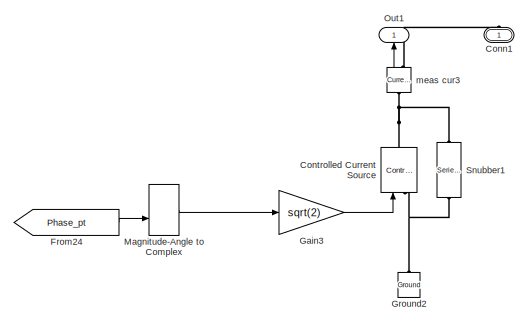
[diagram: Subsystem1 - part 1/3, top right region]
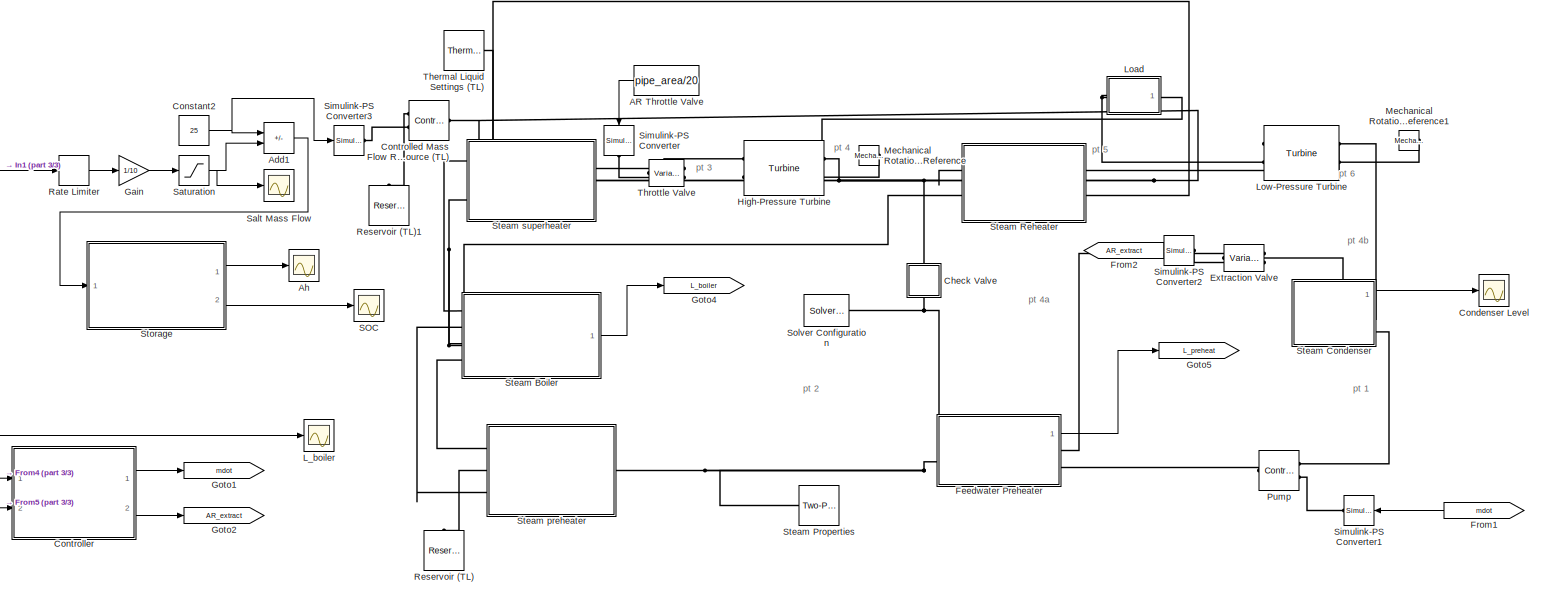
[diagram: Subsystem1 - part 2/3, center side, full height]
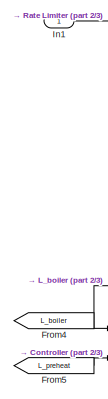
[diagram: Subsystem1 - part 3/3, middle left region]
BLOCK [SubSystem] Subsystem1
  Commented = on
  Ports = [1, 1, 0, 0, 0, 0, 1]
  RequestExecContextInheritance = off
BLOCK [Constant] Subsystem1/AR Throttle Valve
  NameLocation = right
  Value = pipe_area/20
BLOCK [Sum] Subsystem1/Add1
  IconShape = rectangular
  Inputs = +-
  Ports = [2, 1]
BLOCK [Scope] Subsystem1/Ah
  Floating = off
  NumInputPorts = 1
  Ports = [1]
  ScopeSpecificationString = Simulink.scopes.TimeScopeBlockCfg('CurrentConfiguration', extmgr.ConfigurationSet(extmgr.Configuration('Core','General UI',true),extmgr.Configuration('Core','Source UI',true),extmgr.Configuration('Sources','WiredSimulink',true,'DataLoggingVariableName','ScopeData3'),extmgr.Configuration('Visuals','Time Domain',true,'SerializedDisplays',{struct('MinYLimReal','-217.53613','MaxYLimReal','196.77667','...<+1382ch>
BLOCK [SubSystem] Subsystem1/Check Valve
  NameLocation = right
  Ports = [0, 0, 0, 0, 0, 1, 1]
  RequestExecContextInheritance = off
BLOCK [PMIOPort] Subsystem1/Check Valve/A
  Side = Left
BLOCK [PMIOPort] Subsystem1/Check Valve/B
  Port = 2
  Side = Right
BLOCK [Reference] Subsystem1/Check Valve/Pressure & Internal Energy Sensor (2P)  REF=fl_lib/Two-Phase Fluid/Sensors/Pressure & Internal
Energy Sensor (2P)
  Ports = [0, 0, 0, 0, 0, 1, 3]
  SourceBlock = fl_lib/Two-Phase Fluid/Sensors/Pressure & Internal\nEnergy Sensor (2P)
  SourceProductName = Foundation Library
  SourceType = Pressure & Internal\nEnergy Sensor (2P)
BLOCK [SubSystem] Subsystem1/Check Valve/Valve Gain
  NameLocation = right
  Ports = [0, 0, 0, 0, 0, 1, 1]
  RequestExecContextInheritance = off
BLOCK [PMIOPort] Subsystem1/Check Valve/Valve Gain/AR
  Port = 2
  Side = Right
BLOCK [PMIOPort] Subsystem1/Check Valve/Valve Gain/P
  Side = Left
BLOCK [Reference] Subsystem1/Check Valve/Valve Gain/PS Add  REF=fl_lib/Physical Signals/Functions/PS Add
  Ports = [0, 0, 0, 0, 0, 2, 1]
  SourceBlock = fl_lib/Physical Signals/Functions/PS Add
  SourceProductName = Foundation Library
  SourceType = PS Add
BLOCK [Reference] Subsystem1/Check Valve/Valve Gain/PS Constant  REF=fl_lib/Physical Signals/Sources/PS Constant
  NameLocation = right
  Ports = [0, 0, 0, 0, 0, 0, 1]
  SourceBlock = fl_lib/Physical Signals/Sources/PS Constant
  SourceProductName = Foundation Library
  SourceType = PS Constant
BLOCK [Reference] Subsystem1/Check Valve/Valve Gain/PS Constant1  REF=fl_lib/Physical Signals/Sources/PS Constant
  NameLocation = right
  Ports = [0, 0, 0, 0, 0, 0, 1]
  SourceBlock = fl_lib/Physical Signals/Sources/PS Constant
  SourceProductName = Foundation Library
  SourceType = PS Constant
BLOCK [Reference] Subsystem1/Check Valve/Valve Gain/PS Gain  REF=fl_lib/Physical Signals/Functions/PS Gain
  Ports = [0, 0, 0, 0, 0, 1, 1]
  SourceBlock = fl_lib/Physical Signals/Functions/PS Gain
  SourceProductName = Foundation Library
  SourceType = PS Gain
BLOCK [Reference] Subsystem1/Check Valve/Valve Gain/PS Gain1  REF=fl_lib/Physical Signals/Functions/PS Gain
  Ports = [0, 0, 0, 0, 0, 1, 1]
  SourceBlock = fl_lib/Physical Signals/Functions/PS Gain
  SourceProductName = Foundation Library
  SourceType = PS Gain
BLOCK [Reference] Subsystem1/Check Valve/Valve Gain/PS Subtract  REF=fl_lib/Physical Signals/Functions/PS Subtract
  Ports = [0, 0, 0, 0, 0, 2, 1]
  SourceBlock = fl_lib/Physical Signals/Functions/PS Subtract
  SourceProductName = Foundation Library
  SourceType = PS Subtract
BLOCK [Reference] Subsystem1/Check Valve/Valve Gain/tanh  REF=fl_lib/Physical Signals/Functions/PS Math Function
  Ports = [0, 0, 0, 0, 0, 1, 1]
  SourceBlock = fl_lib/Physical Signals/Functions/PS Math Function
  SourceProductName = Foundation Library
  SourceType = PS Math Function
BLOCK [Reference] Subsystem1/Check Valve/Variable Local Restriction (2P)  REF=fl_lib/Two-Phase Fluid/Elements/Variable Local
Restriction (2P)
  Ports = [0, 0, 0, 0, 0, 2, 1]
  SourceBlock = fl_lib/Two-Phase Fluid/Elements/Variable Local\nRestriction (2P)
  SourceProductName = Foundation Library
  SourceType = Variable Local\nRestriction (2P)
BLOCK [Scope] Subsystem1/Condenser Level
  Floating = off
  NumInputPorts = 1
  Ports = [1]
  ScopeSpecificationString = Simulink.scopes.TimeScopeBlockCfg('CurrentConfiguration', extmgr.ConfigurationSet(extmgr.Configuration('Core','General UI',true),extmgr.Configuration('Core','Source UI',true),extmgr.Configuration('Sources','WiredSimulink',true,'DataLoggingVariableName','ScopeData8'),extmgr.Configuration('Visuals','Time Domain',true,'SerializedDisplays',{struct('MinYLimReal','0.1468','MaxYLimReal','0.20591','YLabel...<+1399ch>
BLOCK [PMIOPort] Subsystem1/Conn1
  NameLocation = right
  Side = Right
BLOCK [Constant] Subsystem1/Constant2
  Value = 25
BLOCK [Reference] Subsystem1/Controlled Current Source  REF=spsControlledCurrentSourceLib/Controlled Current Source
  NameLocation = right
  Ports = [1, 0, 0, 0, 0, 1, 1]
  SourceBlock = spsControlledCurrentSourceLib/Controlled Current Source
  SourceType = Controlled Current Source
BLOCK [Reference] Subsystem1/Controlled Mass Flow Rate Source (TL)  REF=fl_lib/Thermal Liquid/Sources/Controlled Mass Flow
Rate Source (TL)
  Ports = [0, 0, 0, 0, 0, 2, 1]
  SourceBlock = fl_lib/Thermal Liquid/Sources/Controlled Mass Flow\nRate Source (TL)
  SourceProductBaseCode = SS
  SourceType = Controlled Mass Flow\nRate Source (TL)
BLOCK [SubSystem] Subsystem1/Controller
  Ports = [2, 2]
  RequestExecContextInheritance = off
BLOCK [Outport] Subsystem1/Controller/AR_extract
  Port = 2
  VectorParamsAs1DForOutWhenUnconnected = off
BLOCK [Constant] Subsystem1/Controller/AR_extract_nominal
  NameLocation = right
  Value = pipe_area / 500
BLOCK [Reference] Subsystem1/Controller/Extraction Controller  REF=pid_lib/PID Controller
  Ports = [1, 1]
  SourceBlock = pid_lib/PID Controller
  SourceProductBaseCode = SL
  SourceType = PID 1dof
BLOCK [TransferFcn] Subsystem1/Controller/Extraction Lag
  Denominator = [1 1]
BLOCK [Inport] Subsystem1/Controller/L_boiler
BLOCK [Constant] Subsystem1/Controller/L_boiler_setpoint
  NameLocation = right
  Value = L_boiler_setpoint
BLOCK [Inport] Subsystem1/Controller/L_preheat
  Port = 2
BLOCK [Constant] Subsystem1/Controller/L_preheat_setpoint
  NameLocation = right
  Value = L_preheat_setpoint
BLOCK [Reference] Subsystem1/Controller/Pump Controller  REF=pid_lib/PID Controller
  Ports = [1, 1]
  SourceBlock = pid_lib/PID Controller
  SourceProductBaseCode = SL
  SourceType = PID 1dof
BLOCK [TransferFcn] Subsystem1/Controller/Pump Lag
  Denominator = [1 1]
BLOCK [Saturate] Subsystem1/Controller/Saturation
  LowerLimit = 0
  UpperLimit = 30
BLOCK [Sum] Subsystem1/Controller/Sum
  Inputs = |-+
  Ports = [2, 1]
BLOCK [Sum] Subsystem1/Controller/Sum1
  Inputs = |++
  Ports = [2, 1]
BLOCK [Sum] Subsystem1/Controller/Sum2
  Inputs = |-+
  Ports = [2, 1]
BLOCK [Sum] Subsystem1/Controller/Sum3
  Inputs = |++
  Ports = [2, 1]
BLOCK [Outport] Subsystem1/Controller/mdot
  VectorParamsAs1DForOutWhenUnconnected = off
BLOCK [Constant] Subsystem1/Controller/mdot_nominal
  NameLocation = right
  Value = 1.5
BLOCK [Reference] Subsystem1/Extraction Valve  REF=fl_lib/Two-Phase Fluid/Elements/Variable Local
Restriction (2P)
  Ports = [0, 0, 0, 0, 0, 2, 1]
  SourceBlock = fl_lib/Two-Phase Fluid/Elements/Variable Local\nRestriction (2P)
  SourceProductName = Foundation Library
  SourceType = Variable Local\nRestriction (2P)
BLOCK [SubSystem] Subsystem1/Feedwater Preheater
  Ports = [0, 1, 0, 0, 0, 2, 2]
  RequestExecContextInheritance = off
  Tag = PublishSubsystem
BLOCK [PMIOPort] Subsystem1/Feedwater Preheater/Condensate Out
  Port = 2
  Side = Right
BLOCK [Reference] Subsystem1/Feedwater Preheater/Convection Steam Side  REF=fl_lib/Thermal/Thermal Elements/Convective Heat
Transfer
  NameLocation = right
  Ports = [0, 0, 0, 0, 0, 1, 1]
  SourceBlock = fl_lib/Thermal/Thermal Elements/Convective Heat\nTransfer
  SourceProductName = Foundation Library
  SourceType = Convective Heat\nTransfer
BLOCK [Reference] Subsystem1/Feedwater Preheater/Feedwater Pipe  REF=fl_lib/Two-Phase Fluid/Elements/Pipe (2P)
  Ports = [0, 0, 0, 0, 0, 2, 1]
  SourceBlock = fl_lib/Two-Phase Fluid/Elements/Pipe (2P)
  SourceProductName = Foundation Library
  SourceType = Pipe (2P)
BLOCK [Outport] Subsystem1/Feedwater Preheater/Level
  VectorParamsAs1DForOutWhenUnconnected = off
BLOCK [Reference] Subsystem1/Feedwater Preheater/PS-Simulink Converter  REF=nesl_utility/PS-Simulink
Converter
  Ports = [0, 1, 0, 0, 0, 1]
  SourceBlock = nesl_utility/PS-Simulink\nConverter
  SourceProductName = Utilities
  SourceType = PS-Simulink\nConverter
BLOCK [SubSystem] Subsystem1/Feedwater Preheater/Preheater Heat Flow Sensor
  NameLocation = right
  Ports = [0, 0, 0, 0, 0, 1, 1]
  RequestExecContextInheritance = off
BLOCK [PMIOPort] Subsystem1/Feedwater Preheater/Preheater Heat Flow Sensor/A
  Side = Left
BLOCK [PMIOPort] Subsystem1/Feedwater Preheater/Preheater Heat Flow Sensor/B
  Port = 2
  Side = Right
BLOCK [Reference] Subsystem1/Feedwater Preheater/Preheater Heat Flow Sensor/Heat Flow Rate Sensor  REF=fl_lib/Thermal/Thermal Sensors/Heat Flow Rate
Sensor
  Ports = [0, 0, 0, 0, 0, 1, 2]
  SourceBlock = fl_lib/Thermal/Thermal Sensors/Heat Flow Rate\nSensor
  SourceProductName = Foundation Library
  SourceType = Heat Flow Rate\nSensor
BLOCK [Reference] Subsystem1/Feedwater Preheater/Steam Condenser  REF=RankineCycle_lib/Saturated Fluid
Chamber
  Ports = [0, 0, 0, 0, 0, 2, 2]
  SourceBlock = RankineCycle_lib/Saturated Fluid\nChamber
  SourceProductBaseCode = SS
  SourceType = Saturated Fluid\nChamber
BLOCK [PMIOPort] Subsystem1/Feedwater Preheater/Steam In
  Side = Left
BLOCK [PMIOPort] Subsystem1/Feedwater Preheater/Water In
  Port = 3
  Side = Right
BLOCK [PMIOPort] Subsystem1/Feedwater Preheater/Water Out
  Port = 4
  Side = Left
BLOCK [From] Subsystem1/From1
  GotoTag = mdot
  TagVisibility = global
BLOCK [From] Subsystem1/From2
  GotoTag = AR_extract
  TagVisibility = global
BLOCK [From] Subsystem1/From24
  GotoTag = Phase_pt
  TagVisibility = global
BLOCK [From] Subsystem1/From4
  GotoTag = L_boiler
  TagVisibility = global
BLOCK [From] Subsystem1/From5
  GotoTag = L_preheat
  TagVisibility = global
BLOCK [Gain] Subsystem1/Gain
  Gain = 1/10
BLOCK [Gain] Subsystem1/Gain3
  Gain = sqrt(2)
BLOCK [Goto] Subsystem1/Goto1
  GotoTag = mdot
  TagVisibility = global
BLOCK [Goto] Subsystem1/Goto2
  GotoTag = AR_extract
  TagVisibility = global
BLOCK [Goto] Subsystem1/Goto4
  GotoTag = L_boiler
  TagVisibility = global
BLOCK [Goto] Subsystem1/Goto5
  GotoTag = L_preheat
  TagVisibility = global
BLOCK [Reference] Subsystem1/Ground2  REF=spsGroundLib/Ground
  NameLocation = right
  Ports = [0, 0, 0, 0, 0, 1]
  SourceBlock = spsGroundLib/Ground
  SourceType = Ground
BLOCK [Reference] Subsystem1/High-Pressure Turbine  REF=RankineCycle_lib/Turbine
  Ports = [0, 0, 0, 0, 0, 2, 2]
  SourceBlock = RankineCycle_lib/Turbine
  SourceProductBaseCode = SS
  SourceType = Turbine
BLOCK [Inport] Subsystem1/In1
BLOCK [Scope] Subsystem1/L_boiler
  Floating = off
  NumInputPorts = 1
  Ports = [1]
  ScopeSpecificationString = Simulink.scopes.TimeScopeBlockCfg('CurrentConfiguration', extmgr.ConfigurationSet(extmgr.Configuration('Core','General UI',true),extmgr.Configuration('Core','Source UI',true),extmgr.Configuration('Sources','WiredSimulink',true,'DataLoggingVariableName','ScopeData10'),extmgr.Configuration('Visuals','Time Domain',true,'SerializedDisplays',{struct('MinYLimReal','0.69185','MaxYLimReal','0.71376','YLab...<+1423ch>
BLOCK [SubSystem] Subsystem1/Load
  Ports = [0, 1, 0, 0, 0, 1]
  RequestExecContextInheritance = off
BLOCK [Gain] Subsystem1/Load/Convert to MW
  Gain = pi/30 * 1e-6
BLOCK [Reference] Subsystem1/Load/Ideal Angular Velocity Source  REF=fl_lib/Mechanical/Mechanical Sources/Ideal Angular
Velocity Source
  Ports = [0, 0, 0, 0, 0, 1, 2]
  SourceBlock = fl_lib/Mechanical/Mechanical Sources/Ideal Angular\nVelocity Source
  SourceProductName = Foundation Library
  SourceType = Ideal Angular\nVelocity Source
BLOCK [Reference] Subsystem1/Load/Ideal Torque Sensor  REF=fl_lib/Mechanical/Mechanical Sensors/Ideal Torque Sensor
  Ports = [0, 0, 0, 0, 0, 1, 2]
  SourceBlock = fl_lib/Mechanical/Mechanical Sensors/Ideal Torque Sensor
  SourceProductName = Foundation Library
  SourceType = Ideal Torque Sensor
BLOCK [Reference] Subsystem1/Load/Mechanical Rotational Reference  REF=fl_lib/Mechanical/Rotational Elements/Mechanical
Rotational Reference
  Ports = [0, 0, 0, 0, 0, 1]
  SourceBlock = fl_lib/Mechanical/Rotational Elements/Mechanical\nRotational Reference
  SourceProductName = Foundation Library
  SourceType = Mechanical\nRotational Reference
BLOCK [Reference] Subsystem1/Load/PS-Simulink Converter1  REF=nesl_utility/PS-Simulink
Converter
  NameLocation = left
  Ports = [0, 1, 0, 0, 0, 1]
  SourceBlock = nesl_utility/PS-Simulink\nConverter
  SourceProductName = Utilities
  SourceType = PS-Simulink\nConverter
BLOCK [Outport] Subsystem1/Load/Power
  VectorParamsAs1DForOutWhenUnconnected = off
BLOCK [Product] Subsystem1/Load/Product
  Ports = [2, 1]
BLOCK [PMIOPort] Subsystem1/Load/R
  Side = Left
BLOCK [Constant] Subsystem1/Load/Shaft speed
  Value = shaft_speed
BLOCK [Reference] Subsystem1/Load/Simulink-PS Converter  REF=nesl_utility/Simulink-PS
Converter
  Ports = [1, 0, 0, 0, 0, 0, 1]
  SourceBlock = nesl_utility/Simulink-PS\nConverter
  SourceProductName = Utilities
  SourceType = Simulink-PS\nConverter
BLOCK [Reference] Subsystem1/Low-Pressure Turbine  REF=RankineCycle_lib/Turbine
  Ports = [0, 0, 0, 0, 0, 2, 2]
  SourceBlock = RankineCycle_lib/Turbine
  SourceProductBaseCode = SS
  SourceType = Turbine
BLOCK [MagnitudeAngleToComplex] Subsystem1/Magnitude-Angle to Complex
  Ports = [2, 1]
BLOCK [Reference] Subsystem1/Mechanical Rotational Reference  REF=fl_lib/Mechanical/Rotational Elements/Mechanical
Rotational Reference
  NameLocation = top
  Ports = [0, 0, 0, 0, 0, 1]
  SourceBlock = fl_lib/Mechanical/Rotational Elements/Mechanical\nRotational Reference
  SourceProductName = Foundation Library
  SourceType = Mechanical\nRotational Reference
BLOCK [Reference] Subsystem1/Mechanical Rotational Reference1  REF=fl_lib/Mechanical/Rotational Elements/Mechanical
Rotational Reference
  NameLocation = top
  Ports = [0, 0, 0, 0, 0, 1]
  SourceBlock = fl_lib/Mechanical/Rotational Elements/Mechanical\nRotational Reference
  SourceProductName = Foundation Library
  SourceType = Mechanical\nRotational Reference
BLOCK [Outport] Subsystem1/Out1
  NameLocation = right
  VectorParamsAs1DForOutWhenUnconnected = off
BLOCK [Reference] Subsystem1/Pump  REF=fl_lib/Two-Phase Fluid/Sources/Controlled Mass Flow
Rate Source (2P)
  Ports = [0, 0, 0, 0, 0, 2, 1]
  SourceBlock = fl_lib/Two-Phase Fluid/Sources/Controlled Mass Flow\nRate Source (2P)
  SourceProductName = Foundation Library
  SourceType = Controlled Mass Flow\nRate Source (2P)
BLOCK [RateLimiter] Subsystem1/Rate Limiter
  FallingSlewLimit = -0.5
  RisingSlewLimit = 0.5
  SampleTimeMode = inherited
BLOCK [Reference] Subsystem1/Reservoir (TL)  REF=fl_lib/Thermal Liquid/Elements/Reservoir (TL)
  NameLocation = right
  Ports = [0, 0, 0, 0, 0, 1]
  SourceBlock = fl_lib/Thermal Liquid/Elements/Reservoir (TL)
  SourceProductBaseCode = SS
  SourceType = Reservoir (TL)
BLOCK [Reference] Subsystem1/Reservoir (TL)1  REF=fl_lib/Thermal Liquid/Elements/Reservoir (TL)
  NameLocation = right
  Ports = [0, 0, 0, 0, 0, 1]
  SourceBlock = fl_lib/Thermal Liquid/Elements/Reservoir (TL)
  SourceProductBaseCode = SS
  SourceType = Reservoir (TL)
BLOCK [Scope] Subsystem1/SOC
  Floating = off
  NumInputPorts = 1
  Ports = [1]
  ScopeSpecificationString = Simulink.scopes.TimeScopeBlockCfg('CurrentConfiguration', extmgr.ConfigurationSet(extmgr.Configuration('Core','General UI',true),extmgr.Configuration('Core','Source UI',true),extmgr.Configuration('Sources','WiredSimulink',true,'DataLoggingVariableName','ScopeData12'),extmgr.Configuration('Visuals','Time Domain',true,'SerializedDisplays',{struct('MinYLimReal','20.64467','MaxYLimReal','103.50723','Y...<+1412ch>
BLOCK [Scope] Subsystem1/Salt Mass Flow
  Floating = off
  NumInputPorts = 1
  Ports = [1]
  ScopeSpecificationString = Simulink.scopes.TimeScopeBlockCfg('CurrentConfiguration', extmgr.ConfigurationSet(extmgr.Configuration('Core','General UI',true),extmgr.Configuration('Core','Source UI',true),extmgr.Configuration('Sources','WiredSimulink',true,'DataLoggingVariableName','ScopeData13'),extmgr.Configuration('Visuals','Time Domain',true,'SerializedDisplays',{struct('MinYLimReal','-9.37452','MaxYLimReal','84.37066','YL...<+1416ch>
BLOCK [Saturate] Subsystem1/Saturation
  LowerLimit = 0
  UpperLimit = 100
BLOCK [Reference] Subsystem1/Simulink-PS Converter  REF=nesl_utility/Simulink-PS
Converter
  NameLocation = left
  Ports = [1, 0, 0, 0, 0, 0, 1]
  SourceBlock = nesl_utility/Simulink-PS\nConverter
  SourceProductName = Utilities
  SourceType = Simulink-PS\nConverter
BLOCK [Reference] Subsystem1/Simulink-PS Converter1  REF=nesl_utility/Simulink-PS
Converter
  Ports = [1, 0, 0, 0, 0, 0, 1]
  SourceBlock = nesl_utility/Simulink-PS\nConverter
  SourceProductName = Utilities
  SourceType = Simulink-PS\nConverter
BLOCK [Reference] Subsystem1/Simulink-PS Converter2  REF=nesl_utility/Simulink-PS
Converter
  Ports = [1, 0, 0, 0, 0, 0, 1]
  SourceBlock = nesl_utility/Simulink-PS\nConverter
  SourceProductName = Utilities
  SourceType = Simulink-PS\nConverter
BLOCK [Reference] Subsystem1/Simulink-PS Converter3  REF=nesl_utility/Simulink-PS
Converter
  Ports = [1, 0, 0, 0, 0, 0, 1]
  SourceBlock = nesl_utility/Simulink-PS\nConverter
  SourceProductName = Utilities
  SourceType = Simulink-PS\nConverter
BLOCK [Reference] Subsystem1/Snubber1  REF=spsSeriesRLCBranchLib/Series RLC Branch
  NameLocation = right
  Ports = [0, 0, 0, 0, 0, 1, 1]
  SourceBlock = spsSeriesRLCBranchLib/Series RLC Branch
  SourceType = Series RLC Branch
BLOCK [Reference] Subsystem1/Solver Configuration  REF=nesl_utility/Solver
Configuration
  Ports = [0, 0, 0, 0, 0, 0, 1]
  SourceBlock = nesl_utility/Solver\nConfiguration
  SourceProductName = Utilities
  SourceType = Solver\nConfiguration
BLOCK [SubSystem] Subsystem1/Steam Boiler
  Ports = [0, 1, 0, 0, 0, 4]
  RequestExecContextInheritance = off
  Tag = PublishSubsystem
BLOCK [Reference] Subsystem1/Steam Boiler/Conductive Heat Transfer  REF=fl_lib/Thermal/Thermal Elements/Conductive Heat
Transfer
  NameLocation = left
  Ports = [0, 0, 0, 0, 0, 1, 1]
  SourceBlock = fl_lib/Thermal/Thermal Elements/Conductive Heat\nTransfer
  SourceProductBaseCode = SS
  SourceType = Conductive Heat\nTransfer
BLOCK [Outport] Subsystem1/Steam Boiler/Level
  VectorParamsAs1DForOutWhenUnconnected = off
BLOCK [Reference] Subsystem1/Steam Boiler/PS-Simulink Converter  REF=nesl_utility/PS-Simulink
Converter
  Ports = [0, 1, 0, 0, 0, 1]
  SourceBlock = nesl_utility/PS-Simulink\nConverter
  SourceProductName = Utilities
  SourceType = PS-Simulink\nConverter
BLOCK [Reference] Subsystem1/Steam Boiler/Pipe (TL)  REF=fl_lib/Thermal Liquid/Elements/Pipe (TL)
  NameLocation = top
  Ports = [0, 0, 0, 0, 0, 2, 1]
  SourceBlock = fl_lib/Thermal Liquid/Elements/Pipe (TL)
  SourceProductBaseCode = SS
  SourceType = Pipe (TL)
BLOCK [PMIOPort] Subsystem1/Steam Boiler/Steam
  Side = Left
BLOCK [Reference] Subsystem1/Steam Boiler/Steam Drum  REF=RankineCycle_lib/Saturated Fluid
Chamber
  Ports = [0, 0, 0, 0, 0, 2, 2]
  SourceBlock = RankineCycle_lib/Saturated Fluid\nChamber
  SourceProductBaseCode = SS
  SourceType = Saturated Fluid\nChamber
BLOCK [PMIOPort] Subsystem1/Steam Boiler/Water
  Port = 2
  Side = Left
BLOCK [PMIOPort] Subsystem1/Steam Boiler/salt in
  Port = 3
  Side = Left
BLOCK [PMIOPort] Subsystem1/Steam Boiler/salt out
  Port = 4
  Side = Left
BLOCK [SubSystem] Subsystem1/Steam Condenser
  Ports = [0, 1, 0, 0, 0, 0, 3]
  RequestExecContextInheritance = off
  Tag = PublishSubsystem
BLOCK [Reference] Subsystem1/Steam Condenser/Condenser  REF=RankineCycle_lib/Saturated Fluid
Chamber
  Ports = [0, 0, 0, 0, 0, 2, 2]
  SourceBlock = RankineCycle_lib/Saturated Fluid\nChamber
  SourceProductBaseCode = SS
  SourceType = Saturated Fluid\nChamber
BLOCK [SubSystem] Subsystem1/Steam Condenser/Condenser Heat Flow Sensor
  NameLocation = left
  Ports = [0, 0, 0, 0, 0, 1, 1]
  RequestExecContextInheritance = off
BLOCK [PMIOPort] Subsystem1/Steam Condenser/Condenser Heat Flow Sensor/A
  Side = Left
BLOCK [PMIOPort] Subsystem1/Steam Condenser/Condenser Heat Flow Sensor/B
  Port = 2
  Side = Right
BLOCK [Reference] Subsystem1/Steam Condenser/Condenser Heat Flow Sensor/Heat Flow Rate Sensor  REF=fl_lib/Thermal/Thermal Sensors/Heat Flow Rate
Sensor
  Ports = [0, 0, 0, 0, 0, 1, 2]
  SourceBlock = fl_lib/Thermal/Thermal Sensors/Heat Flow Rate\nSensor
  SourceProductName = Foundation Library
  SourceType = Heat Flow Rate\nSensor
BLOCK [Outport] Subsystem1/Steam Condenser/Condenser Level
  NameLocation = top
  VectorParamsAs1DForOutWhenUnconnected = off
BLOCK [Reference] Subsystem1/Steam Condenser/Coolant Temperature  REF=fl_lib/Thermal/Thermal Sources/Temperature Source
  NameLocation = right
  Ports = [0, 0, 0, 0, 0, 1]
  SourceBlock = fl_lib/Thermal/Thermal Sources/Temperature Source
  SourceProductName = Foundation Library
  SourceType = Temperature Source
BLOCK [Reference] Subsystem1/Steam Condenser/Flow Resistance (2P)  REF=fl_lib/Two-Phase Fluid/Elements/Flow Resistance (2P)
  Ports = [0, 0, 0, 0, 0, 1, 1]
  SourceBlock = fl_lib/Two-Phase Fluid/Elements/Flow Resistance (2P)
  SourceProductName = Foundation Library
  SourceType = Flow Resistance (2P)
BLOCK [Reference] Subsystem1/Steam Condenser/Flow Resistance (2P)1  REF=fl_lib/Two-Phase Fluid/Elements/Flow Resistance (2P)
  Ports = [0, 0, 0, 0, 0, 1, 1]
  SourceBlock = fl_lib/Two-Phase Fluid/Elements/Flow Resistance (2P)
  SourceProductName = Foundation Library
  SourceType = Flow Resistance (2P)
BLOCK [Reference] Subsystem1/Steam Condenser/Overall Thermal Resistance  REF=fl_lib/Thermal/Thermal Elements/Convective Heat
Transfer
  Ports = [0, 0, 0, 0, 0, 1, 1]
  SourceBlock = fl_lib/Thermal/Thermal Elements/Convective Heat\nTransfer
  SourceProductName = Foundation Library
  SourceType = Convective Heat\nTransfer
BLOCK [Reference] Subsystem1/Steam Condenser/PS-Simulink Converter  REF=nesl_utility/PS-Simulink
Converter
  NameLocation = top
  Ports = [0, 1, 0, 0, 0, 1]
  SourceBlock = nesl_utility/PS-Simulink\nConverter
  SourceProductName = Utilities
  SourceType = PS-Simulink\nConverter
BLOCK [PMIOPort] Subsystem1/Steam Condenser/Steam
  Port = 2
  Side = Right
BLOCK [PMIOPort] Subsystem1/Steam Condenser/Steam Extr
  Side = Right
BLOCK [PMIOPort] Subsystem1/Steam Condenser/Water
  Port = 3
  Side = Right
BLOCK [Reference] Subsystem1/Steam Properties  REF=fl_lib/Two-Phase Fluid/Utilities/Two-Phase Fluid
Properties (2P)
  Ports = [0, 0, 0, 0, 0, 0, 1]
  SourceBlock = fl_lib/Two-Phase Fluid/Utilities/Two-Phase Fluid\nProperties (2P)
  SourceProductName = Foundation Library
  SourceType = Two-Phase Fluid\nProperties (2P)
BLOCK [SubSystem] Subsystem1/Steam Reheater
  Ports = [0, 0, 0, 0, 0, 2, 2]
  RequestExecContextInheritance = off
  Tag = PublishSubsystem
BLOCK [Reference] Subsystem1/Steam Reheater/Furnace Convection  REF=fl_lib/Thermal/Thermal Elements/Convective Heat
Transfer
  NameLocation = right
  Ports = [0, 0, 0, 0, 0, 1, 1]
  SourceBlock = fl_lib/Thermal/Thermal Elements/Convective Heat\nTransfer
  SourceProductName = Foundation Library
  SourceType = Convective Heat\nTransfer
BLOCK [Reference] Subsystem1/Steam Reheater/Pipe (TL)  REF=fl_lib/Thermal Liquid/Elements/Pipe (TL)
  NameLocation = top
  Ports = [0, 0, 0, 0, 0, 2, 1]
  SourceBlock = fl_lib/Thermal Liquid/Elements/Pipe (TL)
  SourceProductBaseCode = SS
  SourceType = Pipe (TL)
BLOCK [Reference] Subsystem1/Steam Reheater/Reheater  REF=fl_lib/Two-Phase Fluid/Elements/Pipe (2P)
  Ports = [0, 0, 0, 0, 0, 2, 1]
  SourceBlock = fl_lib/Two-Phase Fluid/Elements/Pipe (2P)
  SourceProductName = Foundation Library
  SourceType = Pipe (2P)
BLOCK [SubSystem] Subsystem1/Steam Reheater/Reheater Heat Flow Sensor
  Ports = [0, 0, 0, 0, 0, 1, 1]
  RequestExecContextInheritance = off
BLOCK [PMIOPort] Subsystem1/Steam Reheater/Reheater Heat Flow Sensor/A
  Side = Left
BLOCK [PMIOPort] Subsystem1/Steam Reheater/Reheater Heat Flow Sensor/B
  Port = 2
  Side = Right
BLOCK [Goto] Subsystem1/Steam Reheater/Reheater Heat Flow Sensor/Goto
  GotoTag = Reheater
  TagVisibility = global
BLOCK [Reference] Subsystem1/Steam Reheater/Reheater Heat Flow Sensor/Heat Flow Rate Sensor  REF=fl_lib/Thermal/Thermal Sensors/Heat Flow Rate
Sensor
  Ports = [0, 0, 0, 0, 0, 1, 2]
  SourceBlock = fl_lib/Thermal/Thermal Sensors/Heat Flow Rate\nSensor
  SourceProductName = Foundation Library
  SourceType = Heat Flow Rate\nSensor
BLOCK [Reference] Subsystem1/Steam Reheater/Reheater Heat Flow Sensor/PS-Simulink Converter  REF=nesl_utility/PS-Simulink
Converter
  Ports = [0, 1, 0, 0, 0, 1]
  SourceBlock = nesl_utility/PS-Simulink\nConverter
  SourceProductName = Utilities
  SourceType = PS-Simulink\nConverter
BLOCK [PMIOPort] Subsystem1/Steam Reheater/salt in
  NameLocation = top
  Port = 4
  Side = Right
BLOCK [PMIOPort] Subsystem1/Steam Reheater/salt out
  Port = 3
  Side = Left
BLOCK [PMIOPort] Subsystem1/Steam Reheater/steam In
  Side = Left
BLOCK [PMIOPort] Subsystem1/Steam Reheater/steam Out
  Port = 2
  Side = Right
BLOCK [SubSystem] Subsystem1/Steam preheater
  Ports = [0, 0, 0, 0, 0, 3, 1]
  RequestExecContextInheritance = off
  Tag = PublishSubsystem
BLOCK [Reference] Subsystem1/Steam preheater/Conductive Heat Transfer  REF=fl_lib/Thermal/Thermal Elements/Conductive Heat
Transfer
  NameLocation = left
  Ports = [0, 0, 0, 0, 0, 1, 1]
  SourceBlock = fl_lib/Thermal/Thermal Elements/Conductive Heat\nTransfer
  SourceProductBaseCode = SS
  SourceType = Conductive Heat\nTransfer
BLOCK [Reference] Subsystem1/Steam preheater/Feedwater Pipe1  REF=fl_lib/Two-Phase Fluid/Elements/Pipe (2P)
  Ports = [0, 0, 0, 0, 0, 2, 1]
  SourceBlock = fl_lib/Two-Phase Fluid/Elements/Pipe (2P)
  SourceProductName = Foundation Library
  SourceType = Pipe (2P)
BLOCK [Reference] Subsystem1/Steam preheater/Pipe (TL)  REF=fl_lib/Thermal Liquid/Elements/Pipe (TL)
  Ports = [0, 0, 0, 0, 0, 2, 1]
  SourceBlock = fl_lib/Thermal Liquid/Elements/Pipe (TL)
  SourceProductBaseCode = SS
  SourceType = Pipe (TL)
BLOCK [PMIOPort] Subsystem1/Steam preheater/Salt in
  Side = Left
BLOCK [PMIOPort] Subsystem1/Steam preheater/Salt out
  Port = 2
  Side = Left
BLOCK [PMIOPort] Subsystem1/Steam preheater/Water in
  Port = 4
  Side = Right
BLOCK [PMIOPort] Subsystem1/Steam preheater/Water out
  Port = 3
  Side = Left
BLOCK [SubSystem] Subsystem1/Steam superheater
  Ports = [0, 0, 0, 0, 0, 3, 1]
  RequestExecContextInheritance = off
  Tag = PublishSubsystem
BLOCK [Reference] Subsystem1/Steam superheater/Conductive Heat Transfer  REF=fl_lib/Thermal/Thermal Elements/Conductive Heat
Transfer
  NameLocation = top
  Ports = [0, 0, 0, 0, 0, 1, 1]
  SourceBlock = fl_lib/Thermal/Thermal Elements/Conductive Heat\nTransfer
  SourceProductBaseCode = SS
  SourceType = Conductive Heat\nTransfer
BLOCK [Reference] Subsystem1/Steam superheater/Pipe (TL)  REF=fl_lib/Thermal Liquid/Elements/Pipe (TL)
  NameLocation = top
  Ports = [0, 0, 0, 0, 0, 2, 1]
  SourceBlock = fl_lib/Thermal Liquid/Elements/Pipe (TL)
  SourceProductBaseCode = SS
  SourceType = Pipe (TL)
BLOCK [PMIOPort] Subsystem1/Steam superheater/Steam in 
  Port = 2
  Side = Left
BLOCK [PMIOPort] Subsystem1/Steam superheater/Steam out
  Side = Right
BLOCK [Reference] Subsystem1/Steam superheater/Superheater  REF=fl_lib/Two-Phase Fluid/Elements/Pipe (2P)
  Ports = [0, 0, 0, 0, 0, 2, 1]
  SourceBlock = fl_lib/Two-Phase Fluid/Elements/Pipe (2P)
  SourceProductName = Foundation Library
  SourceType = Pipe (2P)
BLOCK [PMIOPort] Subsystem1/Steam superheater/salt in
  Port = 3
  Side = Left
BLOCK [PMIOPort] Subsystem1/Steam superheater/salt out
  Port = 4
  Side = Left
BLOCK [SubSystem] Subsystem1/Storage
  Ports = [1, 2]
  RequestExecContextInheritance = off
BLOCK [Sum] Subsystem1/Storage/Add
  IconShape = rectangular
  Inputs = +-
  Ports = [2, 1]
BLOCK [Outport] Subsystem1/Storage/Battery_Ah
  VectorParamsAs1DForOutWhenUnconnected = off
BLOCK [Outport] Subsystem1/Storage/Battery_SOC
  Port = 2
  VectorParamsAs1DForOutWhenUnconnected = off
BLOCK [Constant] Subsystem1/Storage/Constant
  Value = 1000*0.2*3600
BLOCK [Constant] Subsystem1/Storage/Constant1
  Value = 0.5
BLOCK [Gain] Subsystem1/Storage/Gain
  Gain = 1/3600
BLOCK [Gain] Subsystem1/Storage/Gain3
  Gain = 1/(1000*3600)
BLOCK [Gain] Subsystem1/Storage/Gain8
  Gain = 200
BLOCK [Inport] Subsystem1/Storage/I_RMS
BLOCK [Integrator] Subsystem1/Storage/Integrator
  Ports = [1, 1]
BLOCK [Integrator] Subsystem1/Storage/Integrator1
  InitialConditionSource = external
  Ports = [2, 1]
BLOCK [Reference] Subsystem1/Thermal Liquid Settings (TL)  REF=fl_lib/Thermal Liquid/Utilities/Thermal Liquid
Settings (TL)
  Ports = [0, 0, 0, 0, 0, 0, 1]
  SourceBlock = fl_lib/Thermal Liquid/Utilities/Thermal Liquid\nSettings (TL)
  SourceProductBaseCode = SS
  SourceType = Thermal Liquid\nSettings (TL)
BLOCK [Reference] Subsystem1/Throttle Valve  REF=fl_lib/Two-Phase Fluid/Elements/Variable Local
Restriction (2P)
  Ports = [0, 0, 0, 0, 0, 2, 1]
  SourceBlock = fl_lib/Two-Phase Fluid/Elements/Variable Local\nRestriction (2P)
  SourceProductName = Foundation Library
  SourceType = Variable Local\nRestriction (2P)
BLOCK [Reference] Subsystem1/meas cur3  REF=spsCurrentMeasurementLib/Current Measurement
  NameLocation = left
  Ports = [0, 1, 0, 0, 0, 1, 1]
  SourceBlock = spsCurrentMeasurementLib/Current Measurement
  SourceType = Current Measurement
BLOCK [SubSystem] Subsystem2
  Ports = [1, 1, 0, 0, 0, 0, 1]
  RequestExecContextInheritance = off
BLOCK [Sum] Subsystem2/Add
  IconShape = rectangular
  Inputs = +-
  Ports = [2, 1]
BLOCK [PMIOPort] Subsystem2/Conn1
  NameLocation = right
  Side = Right
BLOCK [Constant] Subsystem2/Constant
  Value = 0
BLOCK [Constant] Subsystem2/Constant1
  Value = 0
BLOCK [Constant] Subsystem2/Constant2
  Value = 3
BLOCK [Reference] Subsystem2/Controlled Current Source  REF=powerlib/Electrical
Sources/Controlled Current Source
  NameLocation = right
  Ports = [1, 0, 0, 0, 0, 1, 1]
  SourceBlock = powerlib/Electrical\nSources/Controlled Current Source
  SourceProductBaseCode = PS
  SourceType = Controlled Current Source
BLOCK [Scope] Subsystem2/Cp
  Floating = off
  NumInputPorts = 1
  Ports = [1]
  ScopeSpecificationString = Simulink.scopes.TimeScopeBlockCfg('CurrentConfiguration', extmgr.ConfigurationSet(extmgr.Configuration('Core','General UI',true),extmgr.Configuration('Core','Source UI',true),extmgr.Configuration('Sources','WiredSimulink',true,'DataLoggingVariableName','ScopeData2'),extmgr.Configuration('Visuals','Time Domain',true,'SerializedDisplays',{struct('MinYLimReal','0.39353','MaxYLimReal','0.43812','YLabe...<+1422ch>
BLOCK [Product] Subsystem2/Divide
  Inputs = **
  Ports = [2, 1]
BLOCK [From] Subsystem2/From24
  GotoTag = Phase_pv
  TagVisibility = global
BLOCK [Gain] Subsystem2/Gain
  Gain = 30/3.14159
BLOCK [Gain] Subsystem2/Gain1
  Gain = 1/3.6
BLOCK [Gain] Subsystem2/Gain2
  Gain = 1/100000/500
BLOCK [Gain] Subsystem2/Gain3
  Gain = sqrt(2)
BLOCK [SubSystem] Subsystem2/Gear Box
  Ports = [2, 1]
  RequestExecContextInheritance = off
BLOCK [Sum] Subsystem2/Gear Box/Add
  IconShape = rectangular
  Inputs = +-
  Ports = [2, 1]
BLOCK [Gain] Subsystem2/Gear Box/Gain
  Gain = 1/J_t
BLOCK [Gain] Subsystem2/Gear Box/Gain1
  Gain = -K_t/J_t
BLOCK [Integrator] Subsystem2/Gear Box/Integrator
  InitialCondition = 1.5
  Ports = [1, 1]
BLOCK [Sum] Subsystem2/Gear Box/Sum
  Inputs = |++
  Ports = [2, 1]
BLOCK [Inport] Subsystem2/Gear Box/T_a
BLOCK [Inport] Subsystem2/Gear Box/T_g
  Port = 2
BLOCK [Outport] Subsystem2/Gear Box/omg_r
BLOCK [Reference] Subsystem2/Ground2  REF=powerlib/Elements/Ground
  NameLocation = right
  Ports = [0, 0, 0, 0, 0, 1]
  SourceBlock = powerlib/Elements/Ground
  SourceProductBaseCode = PS
  SourceType = Ground
BLOCK [Inport] Subsystem2/In1
BLOCK [MagnitudeAngleToComplex] Subsystem2/Magnitude-Angle to Complex
  Ports = [2, 1]
BLOCK [Outport] Subsystem2/Out1
  NameLocation = right
  VectorParamsAs1DForOutWhenUnconnected = off
BLOCK [RateLimiter] Subsystem2/Rate Limiter
  FallingSlewLimit = -0.001
  RisingSlewLimit = 0.001
  SampleTimeMode = inherited
BLOCK [SubSystem] Subsystem2/Rotor Model
  Ports = [3, 2]
  RequestExecContextInheritance = off
BLOCK [Fcn] Subsystem2/Rotor Model/1//m
  Expr = 1/(u(1)+0.08*u(2))-0.035/(u(2)^3+1)
BLOCK [Fcn] Subsystem2/Rotor Model/C_p
  Expr = 0.22*(116*u(1)-0.4*u(2)-5)*exp(-12.5*u(1))
BLOCK [Outport] Subsystem2/Rotor Model/Cp
  Port = 2
BLOCK [Product] Subsystem2/Rotor Model/Divide
  Inputs = /*
  Ports = [2, 1]
BLOCK [From] Subsystem2/Rotor Model/From
  GotoTag = lamda
BLOCK [Goto] Subsystem2/Rotor Model/Goto
  GotoTag = lamda
BLOCK [Mux] Subsystem2/Rotor Model/Mux
  DisplayOption = bar
  Inputs = 2
  Ports = [2, 1]
BLOCK [Mux] Subsystem2/Rotor Model/Mux1
  DisplayOption = bar
  Inputs = 2
  Ports = [2, 1]
BLOCK [Mux] Subsystem2/Rotor Model/Mux2
  DisplayOption = bar
  Inputs = 2
  Ports = [2, 1]
BLOCK [Mux] Subsystem2/Rotor Model/Mux3
  DisplayOption = bar
  Inputs = 2
  Ports = [2, 1]
BLOCK [Scope] Subsystem2/Rotor Model/Scope
  Floating = off
  NumInputPorts = 1
  Ports = [1]
  ScopeSpecificationString = Simulink.scopes.TimeScopeBlockCfg('CurrentConfiguration', extmgr.ConfigurationSet(extmgr.Configuration('Core','General UI',true),extmgr.Configuration('Core','Source UI',true),extmgr.Configuration('Sources','WiredSimulink',true,'DataLoggingVariableName','ScopeData1'),extmgr.Configuration('Visuals','Time Domain',true,'SerializedDisplays',{struct('MinYLimReal','-1.875','MaxYLimReal','16.875','YLabelR...<+1419ch>
BLOCK [Scope] Subsystem2/Rotor Model/Scope1
  Floating = off
  NumInputPorts = 1
  Ports = [1]
  ScopeSpecificationString = Simulink.scopes.TimeScopeBlockCfg('CurrentConfiguration', extmgr.ConfigurationSet(extmgr.Configuration('Core','General UI',true),extmgr.Configuration('Core','Source UI',true),extmgr.Configuration('Sources','WiredSimulink',true,'DataLoggingVariableName','ScopeData2'),extmgr.Configuration('Visuals','Time Domain',true,'SerializedDisplays',{struct('MinYLimReal','-1.7685','MaxYLimReal','21.24653','YLab...<+1366ch>
BLOCK [Outport] Subsystem2/Rotor Model/T_a
BLOCK [Fcn] Subsystem2/Rotor Model/Torque
  Expr = 0.5*3.14159*rho*(40^3)*(u(1)^2)*u(2)
BLOCK [Fcn] Subsystem2/Rotor Model/lamda
  Expr = u(2)*40/u(1)
BLOCK [Inport] Subsystem2/Rotor Model/omg_r
  Port = 3
BLOCK [Inport] Subsystem2/Rotor Model/pitch
  Port = 2
BLOCK [Inport] Subsystem2/Rotor Model/wind speed
BLOCK [Saturate] Subsystem2/Saturation
  LowerLimit = 0
  UpperLimit = 25
BLOCK [Scope] Subsystem2/Scope1
  Floating = off
  NumInputPorts = 1
  Ports = [1]
  ScopeSpecificationString = Simulink.scopes.TimeScopeBlockCfg('CurrentConfiguration', extmgr.ConfigurationSet(extmgr.Configuration('Core','General UI',true),extmgr.Configuration('Core','Source UI',true),extmgr.Configuration('Sources','WiredSimulink',true,'DataLoggingVariableName','ScopeData4'),extmgr.Configuration('Visuals','Time Domain',true,'SerializedDisplays',{struct('MinYLimReal','-145648.53188','MaxYLimReal','1309344.5...<+1466ch>
BLOCK [Scope] Subsystem2/Scope2
  Floating = off
  NumInputPorts = 1
  Ports = [1]
  ScopeSpecificationString = Simulink.scopes.TimeScopeBlockCfg('CurrentConfiguration', extmgr.ConfigurationSet(extmgr.Configuration('Core','General UI',true),extmgr.Configuration('Core','Source UI',true),extmgr.Configuration('Sources','WiredSimulink',true,'DataLoggingVariableName','ScopeData5'),extmgr.Configuration('Visuals','Time Domain',true,'SerializedDisplays',{struct('MinYLimReal','-3.125','MaxYLimReal','28.125','YLabelR...<+1527ch>
BLOCK [Reference] Subsystem2/Snubber1  REF=powerlib/Elements/Series RLC Branch
  NameLocation = right
  Ports = [0, 0, 0, 0, 0, 1, 1]
  SourceBlock = powerlib/Elements/Series RLC Branch
  SourceProductBaseCode = PS
  SourceType = Series RLC Branch
BLOCK [Switch] Subsystem2/Switch
  Criteria = u2 > Threshold
  InputSameDT = off
  SaturateOnIntegerOverflow = off
BLOCK [Scope] Subsystem2/Tg
  Floating = off
  NumInputPorts = 1
  Ports = [1]
  ScopeSpecificationString = Simulink.scopes.TimeScopeBlockCfg('CurrentConfiguration', extmgr.ConfigurationSet(extmgr.Configuration('Core','General UI',true),extmgr.Configuration('Core','Source UI',true),extmgr.Configuration('Sources','WiredSimulink',true,'DataLoggingVariableName','ScopeData6'),extmgr.Configuration('Visuals','Time Domain',true,'SerializedDisplays',{struct('MinYLimReal','-80155.00924','MaxYLimReal','1528490.65...<+1446ch>
BLOCK [SubSystem] Subsystem2/indirect_control
  Ports = [1, 1]
  RequestExecContextInheritance = off
BLOCK [Fcn] Subsystem2/indirect_control/1
  Expr = u*u
BLOCK [Fcn] Subsystem2/indirect_control/2
  Expr = u^5
BLOCK [Fcn] Subsystem2/indirect_control/3
  Expr = u^3
BLOCK [Constant] Subsystem2/indirect_control/Constant
  Value = 0.5
BLOCK [Constant] Subsystem2/indirect_control/Constant1
  Value = pi
BLOCK [Constant] Subsystem2/indirect_control/Constant2
  Value = rho
BLOCK [Constant] Subsystem2/indirect_control/Constant3
  Value = 40
BLOCK [Constant] Subsystem2/indirect_control/Constant4
  Value = Cp_max
BLOCK [Product] Subsystem2/indirect_control/Divide
  Inputs = ******/
  Ports = [7, 1]
BLOCK [Outport] Subsystem2/indirect_control/T_g
BLOCK [Constant] Subsystem2/indirect_control/lamda_opt
  Value = lambda_opt
BLOCK [Inport] Subsystem2/indirect_control/omg_r
BLOCK [Reference] Subsystem2/meas cur3  REF=powerlib/Measurements/Current Measurement
  NameLocation = left
  Ports = [0, 1, 0, 0, 0, 1, 1]
  SourceBlock = powerlib/Measurements/Current Measurement
  SourceProductBaseCode = PS
  SourceType = Current Measurement
BLOCK [Scope] Subsystem2/omg_r
  Floating = off
  NumInputPorts = 1
  Ports = [1]
  ScopeSpecificationString = Simulink.scopes.TimeScopeBlockCfg('CurrentConfiguration', extmgr.ConfigurationSet(extmgr.Configuration('Core','General UI',true),extmgr.Configuration('Core','Source UI',true),extmgr.Configuration('Sources','WiredSimulink',true,'DataLoggingVariableName','ScopeData7'),extmgr.Configuration('Visuals','Time Domain',true,'SerializedDisplays',{struct('MinYLimReal','-1.79049','MaxYLimReal','16.11445','YLa...<+1417ch>
BLOCK [Reference] Three-Phase Source  REF=powerlib/Electrical
Sources/Three-Phase Source
  NameLocation = top
  Ports = [0, 0, 0, 0, 0, 0, 3]
  SourceBlock = powerlib/Electrical\nSources/Three-Phase Source
  SourceProductBaseCode = PS
  SourceType = Three-Phase Source
BLOCK [Reference] Voltage Measurement  REF=powerlib/Measurements/Voltage Measurement
  NameLocation = top
  Ports = [0, 1, 0, 0, 0, 2]
  SourceBlock = powerlib/Measurements/Voltage Measurement
  SourceProductBaseCode = PS
  SourceType = Voltage Measurement
BLOCK [Reference] Voltage Measurement2  REF=powerlib/Measurements/Voltage Measurement
  NameLocation = top
  Ports = [0, 1, 0, 0, 0, 2]
  SourceBlock = powerlib/Measurements/Voltage Measurement
  SourceProductBaseCode = PS
  SourceType = Voltage Measurement
BLOCK [Reference] Voltage Measurement3  REF=powerlib/Measurements/Voltage Measurement
  NameLocation = top
  Ports = [0, 1, 0, 0, 0, 2]
  SourceBlock = powerlib/Measurements/Voltage Measurement
  SourceProductBaseCode = PS
  SourceType = Voltage Measurement
BLOCK [Reference] meas cur2  REF=powerlib/Measurements/Current Measurement
  Ports = [0, 1, 0, 0, 0, 1, 1]
  SourceBlock = powerlib/Measurements/Current Measurement
  SourceProductBaseCode = PS
  SourceType = Current Measurement
BLOCK [Reference] meas cur3  REF=powerlib/Measurements/Current Measurement
  NameLocation = top
  Ports = [0, 1, 0, 0, 0, 1, 1]
  SourceBlock = powerlib/Measurements/Current Measurement
  SourceProductBaseCode = PS
  SourceType = Current Measurement
BLOCK [Reference] powergui  REF=powerlib/powergui
  Ports = []
  SourceBlock = powerlib/powergui
  SourceProductBaseCode = PS
  SourceType = PSB option menu block
ANNOTATION (root): Battery
ANNOTATION (root): Battery Controller
ANNOTATION (root): Battery_Simple_Dynamics
ANNOTATION (root): House1
ANNOTATION (root): Pole Mounted Transformer
ANNOTATION (root): Power Grid
ANNOTATION (root): Scenario
ANNOTATION (root): Scopes
ANNOTATION (root): Simplified Model of a Small Scale Micro-Grid
ANNOTATION (root): Solar Panel
ANNOTATION Subsystem1: pt 1
ANNOTATION Subsystem1: pt 2
ANNOTATION Subsystem1: pt 3
ANNOTATION Subsystem1: pt 4
ANNOTATION Subsystem1: pt 4a
ANNOTATION Subsystem1: pt 4b
ANNOTATION Subsystem1: pt 5
ANNOTATION Subsystem1: pt 6
LINE Battery/In1:1 -> Battery/Controlled Current Source:1
LINE Battery/meas cur3:1 -> Battery/Out1:1
LINE Battery:1 -> Goto11:1
LINE Battery_Control/Active & Reactive Power (Phasor Type):1 -> Battery_Control/Demux:1
LINE Battery_Control/Add6:1 -> Battery_Control/Integral Gain:1
NET Battery_Control/Demux:1 -> Battery_Control/Add6:2, Battery_Control/Switch:3
LINE Battery_Control/Demux:2 -> Battery_Control/Terminator:1
LINE Battery_Control/I:1 -> Battery_Control/Active & Reactive Power (Phasor Type):2
LINE Battery_Control/Integral Gain:1 -> Battery_Control/Integrator:1
LINE Battery_Control/Integrator:1 -> Battery_Control/I_RMS:1
NET Battery_Control/On:1 -> Battery_Control/Integrator:2, Battery_Control/Switch:2
LINE Battery_Control/Pref:1 -> Battery_Control/Switch:1
LINE Battery_Control/Switch:1 -> Battery_Control/Add6:1
LINE Battery_Control/V:1 -> Battery_Control/Active & Reactive Power (Phasor Type):1
NET Battery_Control:1 -> Magnitude-Angle to Complex:1, Subsystem:1
LINE From13:1 -> House 1:1
LINE From1:1 -> Battery:1
LINE From23:1 -> Battery_Control:1
LINE From24:1 -> Magnitude-Angle to Complex:2
LINE From25:1 -> Battery_Control:2
LINE From2:1 -> Scenario:1
LINE From3:1 -> Battery_Control:3
LINE From4:1 -> Product:1
LINE From5:1 -> Subsystem2:1
LINE From:1 -> Subsystem1:1
LINE Gain3:1 -> Goto14:1
LINE House 1/From24:1 -> House 1/Magnitude-Angle to Complex:2
LINE House 1/Gain3:1 -> House 1/Controlled Current Source4:1
LINE House 1/In1:1 -> House 1/Magnitude-Angle to Complex:1
LINE House 1/Magnitude-Angle to Complex:1 -> House 1/Gain3:1
LINE House 1/meas cur2:1 -> House 1/Out1:1
LINE House 1:1 -> Goto6:1
LINE Magnitude-Angle to Complex:1 -> Gain3:1
LINE PV/From24:1 -> PV/Magnitude-Angle to Complex:2
LINE PV/Gain3:1 -> PV/Controlled Current Source1:1
LINE PV/In1:1 -> PV/Simulink-PS Converter:1
LINE PV/Magnitude-Angle to Complex:1 -> PV/Gain3:1
LINE PV/PS-Simulink Converter1:1 -> PV/Magnitude-Angle to Complex:1
LINE PV/meas cur1:1 -> PV/Out1:1
LINE PV:1 -> Goto3:1
LINE Partial Shading/Add:1 -> Partial Shading/Out:1
NET Partial Shading/Clock:1 -> Partial Shading/Compare To Constant1:1, Partial Shading/Compare To Constant:1
LINE Partial Shading/Compare To Constant1:1 -> Partial Shading/Logical Operator:2
LINE Partial Shading/Compare To Constant:1 -> Partial Shading/Logical Operator:1
LINE Partial Shading/Constant:1 -> Partial Shading/Product:2
LINE Partial Shading/Logical Operator1:1 -> Partial Shading/Add:1
NET Partial Shading/Logical Operator:1 -> Partial Shading/Logical Operator1:1, Partial Shading/Product:1
LINE Partial Shading/Product:1 -> Partial Shading/Add:2
LINE Partial Shading:1 -> Product:2
LINE Product:1 -> PV:1
LINE Scenario/Add:1 -> Scenario/Switch8:2
NET Scenario/Complex to Magnitude-Angle:1 -> Scenario/Goto18:1, Scenario/Goto1:1, Scenario/Goto2:1, Scenario/Goto3:1, Scenario/Goto:1
LINE Scenario/Constant3:1 -> Scenario/Switch8:3
LINE Scenario/Constant4:1 -> Scenario/Switch8:1
LINE Scenario/Demux:1 -> Scenario/Load:1
LINE Scenario/Demux:2 -> Scenario/PV_I:1
LINE Scenario/Demux:3 -> Scenario/Out3:1
LINE Scenario/Demux:4 -> Scenario/Out4:1
LINE Scenario/Gain1:1 -> Scenario/Mux:2
LINE Scenario/Gain2:1 -> Scenario/Mux:1
LINE Scenario/Gain3:1 -> Scenario/Mux:3
LINE Scenario/Gain:1 -> Scenario/Gain2:1
LINE Scenario/Mux:1 -> Scenario/Demux:1
LINE Scenario/Rate Limiter1:1 -> Scenario/Gain3:1
LINE Scenario/Rate Limiter:1 -> Scenario/Gain1:1
LINE Scenario/Signal Builder1:1 -> Scenario/Rate Limiter1:1
LINE Scenario/Signal Builder2:1 -> Scenario/Rate Limiter:1
LINE Scenario/Signal Builder3:1 -> Scenario/Mux:4
LINE Scenario/Signal Builder:1 -> Scenario/Gain:1
LINE Scenario/Step_Off:1 -> Scenario/Add:1
LINE Scenario/Step_On:1 -> Scenario/Add:2
LINE Scenario/Switch8:1 -> Scenario/Goto8:1
LINE Scenario/Vsec:1 -> Scenario/Complex to Magnitude-Angle:1
LINE Scenario:1 -> Goto16:1
LINE Scenario:2 -> Goto9:1
LINE Scenario:3 -> Goto8:1
LINE Scenario:4 -> Goto10:1
LINE Scopes/Active & Reactive Power (Phasor Type)1:1 -> Scopes/Selector1:1
LINE Scopes/Active & Reactive Power (Phasor Type)2:1 -> Scopes/Selector2:1
LINE Scopes/Active & Reactive Power (Phasor Type)3:1 -> Scopes/Selector4:1
LINE Scopes/Active & Reactive Power (Phasor Type)4:1 -> Scopes/Selector3:1
LINE Scopes/Active & Reactive Power (Phasor Type)5:1 -> Scopes/Selector5:1
LINE Scopes/Active & Reactive Power (Phasor Type):1 -> Scopes/Selector:1
LINE Scopes/From17:1 -> Scopes/Active & Reactive Power (Phasor Type):2
LINE Scopes/From18:1 -> Scopes/Active & Reactive Power (Phasor Type)1:2
LINE Scopes/From1:1 -> Scopes/VI_prim:1
LINE Scopes/From20:1 -> Scopes/Active & Reactive Power (Phasor Type)2:2
LINE Scopes/From29:1 -> Scopes/soc:1
LINE Scopes/From2:1 -> Scopes/Active & Reactive Power (Phasor Type)4:2
LINE Scopes/From3:1 -> Scopes/Active & Reactive Power (Phasor Type)5:2
LINE Scopes/From4:1 -> Scopes/VI_prim:2
NET Scopes/From5:1 -> Scopes/Active & Reactive Power (Phasor Type)1:1, Scopes/Active & Reactive Power (Phasor Type)2:1, Scopes/Active & Reactive Power (Phasor Type)3:1, Scopes/Active & Reactive Power (Phasor Type)4:1, Scopes/Active & Reactive Power (Phasor Type)5:1, Scopes/Active & Reactive Power (Phasor Type):1
LINE Scopes/From6:1 -> Scopes/Battery_Ah:1
LINE Scopes/From:1 -> Scopes/Active & Reactive Power (Phasor Type)3:2
LINE Scopes/Selector1:1 -> Scopes/ScopeSPS:2
LINE Scopes/Selector2:1 -> Scopes/ScopeSPS:3
LINE Scopes/Selector3:1 -> Scopes/ScopeSPS:4
LINE Scopes/Selector4:1 -> Scopes/ScopeSPS:5
LINE Scopes/Selector5:1 -> Scopes/ScopeSPS:6
LINE Scopes/Selector:1 -> Scopes/ScopeSPS:1
LINE Subsystem/Add:1 -> Subsystem/Gain8:1
LINE Subsystem/Constant1:1 -> Subsystem/Add:1
LINE Subsystem/Constant:1 -> Subsystem/Integrator1:2
LINE Subsystem/Gain3:1 -> Subsystem/Add:2
LINE Subsystem/Gain8:1 -> Subsystem/Battery_SOC:1
LINE Subsystem/Gain:1 -> Subsystem/Battery_Ah:1
NET Subsystem/I_RMS:1 -> Subsystem/Integrator1:1, Subsystem/Integrator:1
LINE Subsystem/Integrator1:1 -> Subsystem/Gain3:1
LINE Subsystem/Integrator:1 -> Subsystem/Gain:1
LINE Subsystem1/AR Throttle Valve:1 -> Subsystem1/Simulink-PS Converter:1
LINE Subsystem1/Add1:1 -> Subsystem1/Storage:1
NET Subsystem1/Constant2:1 -> Subsystem1/Add1:1, Subsystem1/Simulink-PS Converter3:1
LINE Subsystem1/Controller/AR_extract_nominal:1 -> Subsystem1/Controller/Sum3:2
LINE Subsystem1/Controller/Extraction Controller:1 -> Subsystem1/Controller/Extraction Lag:1
LINE Subsystem1/Controller/Extraction Lag:1 -> Subsystem1/Controller/Sum3:1
LINE Subsystem1/Controller/L_boiler:1 -> Subsystem1/Controller/Sum:1
LINE Subsystem1/Controller/L_boiler_setpoint:1 -> Subsystem1/Controller/Sum:2
LINE Subsystem1/Controller/L_preheat:1 -> Subsystem1/Controller/Sum2:1
LINE Subsystem1/Controller/L_preheat_setpoint:1 -> Subsystem1/Controller/Sum2:2
LINE Subsystem1/Controller/Pump Controller:1 -> Subsystem1/Controller/Pump Lag:1
LINE Subsystem1/Controller/Pump Lag:1 -> Subsystem1/Controller/Sum1:1
LINE Subsystem1/Controller/Saturation:1 -> Subsystem1/Controller/mdot:1
LINE Subsystem1/Controller/Sum1:1 -> Subsystem1/Controller/Saturation:1
LINE Subsystem1/Controller/Sum2:1 -> Subsystem1/Controller/Extraction Controller:1
LINE Subsystem1/Controller/Sum3:1 -> Subsystem1/Controller/AR_extract:1
LINE Subsystem1/Controller/Sum:1 -> Subsystem1/Controller/Pump Controller:1
LINE Subsystem1/Controller/mdot_nominal:1 -> Subsystem1/Controller/Sum1:2
LINE Subsystem1/Controller:1 -> Subsystem1/Goto1:1
LINE Subsystem1/Controller:2 -> Subsystem1/Goto2:1
LINE Subsystem1/Feedwater Preheater/PS-Simulink Converter:1 -> Subsystem1/Feedwater Preheater/Level:1
LINE Subsystem1/Feedwater Preheater:1 -> Subsystem1/Goto5:1
LINE Subsystem1/From1:1 -> Subsystem1/Simulink-PS Converter1:1
LINE Subsystem1/From24:1 -> Subsystem1/Magnitude-Angle to Complex:2
LINE Subsystem1/From2:1 -> Subsystem1/Simulink-PS Converter2:1
NET Subsystem1/From4:1 -> Subsystem1/Controller:1, Subsystem1/L_boiler:1
LINE Subsystem1/From5:1 -> Subsystem1/Controller:2
LINE Subsystem1/Gain3:1 -> Subsystem1/Controlled Current Source:1
LINE Subsystem1/Gain:1 -> Subsystem1/Saturation:1
LINE Subsystem1/In1:1 -> Subsystem1/Rate Limiter:1
LINE Subsystem1/Load/Convert to MW:1 -> Subsystem1/Load/Power:1
LINE Subsystem1/Load/PS-Simulink Converter1:1 -> Subsystem1/Load/Product:2
LINE Subsystem1/Load/Product:1 -> Subsystem1/Load/Convert to MW:1
NET Subsystem1/Load/Shaft speed:1 -> Subsystem1/Load/Product:1, Subsystem1/Load/Simulink-PS Converter:1
LINE Subsystem1/Magnitude-Angle to Complex:1 -> Subsystem1/Gain3:1
LINE Subsystem1/Rate Limiter:1 -> Subsystem1/Gain:1
NET Subsystem1/Saturation:1 -> Subsystem1/Add1:2, Subsystem1/Salt Mass Flow:1
LINE Subsystem1/Steam Boiler/PS-Simulink Converter:1 -> Subsystem1/Steam Boiler/Level:1
LINE Subsystem1/Steam Boiler:1 -> Subsystem1/Goto4:1
LINE Subsystem1/Steam Condenser/PS-Simulink Converter:1 -> Subsystem1/Steam Condenser/Condenser Level:1
LINE Subsystem1/Steam Condenser:1 -> Subsystem1/Condenser Level:1
LINE Subsystem1/Steam Reheater/Reheater Heat Flow Sensor/PS-Simulink Converter:1 -> Subsystem1/Steam Reheater/Reheater Heat Flow Sensor/Goto:1
LINE Subsystem1/Storage/Add:1 -> Subsystem1/Storage/Gain8:1
LINE Subsystem1/Storage/Constant1:1 -> Subsystem1/Storage/Add:1
LINE Subsystem1/Storage/Constant:1 -> Subsystem1/Storage/Integrator1:2
LINE Subsystem1/Storage/Gain3:1 -> Subsystem1/Storage/Add:2
LINE Subsystem1/Storage/Gain8:1 -> Subsystem1/Storage/Battery_SOC:1
LINE Subsystem1/Storage/Gain:1 -> Subsystem1/Storage/Battery_Ah:1
NET Subsystem1/Storage/I_RMS:1 -> Subsystem1/Storage/Integrator1:1, Subsystem1/Storage/Integrator:1
LINE Subsystem1/Storage/Integrator1:1 -> Subsystem1/Storage/Gain3:1
LINE Subsystem1/Storage/Integrator:1 -> Subsystem1/Storage/Gain:1
LINE Subsystem1/Storage:1 -> Subsystem1/Ah:1
LINE Subsystem1/Storage:2 -> Subsystem1/SOC:1
LINE Subsystem1/meas cur3:1 -> Subsystem1/Out1:1
LINE Subsystem2/Add:1 -> Subsystem2/Switch:2
LINE Subsystem2/Constant1:1 -> Subsystem2/Switch:3
LINE Subsystem2/Constant2:1 -> Subsystem2/Add:2
LINE Subsystem2/Constant:1 -> Subsystem2/Rotor Model:2
LINE Subsystem2/Divide:1 -> Subsystem2/Gain2:1
LINE Subsystem2/From24:1 -> Subsystem2/Magnitude-Angle to Complex:2
NET Subsystem2/Gain1:1 -> Subsystem2/Add:1, Subsystem2/Switch:1
LINE Subsystem2/Gain2:1 -> Subsystem2/Magnitude-Angle to Complex:1
LINE Subsystem2/Gain3:1 -> Subsystem2/Controlled Current Source:1
LINE Subsystem2/Gain:1 -> Subsystem2/omg_r:1
LINE Subsystem2/Gear Box/Add:1 -> Subsystem2/Gear Box/Gain:1
LINE Subsystem2/Gear Box/Gain1:1 -> Subsystem2/Gear Box/Sum:2
LINE Subsystem2/Gear Box/Gain:1 -> Subsystem2/Gear Box/Sum:1
NET Subsystem2/Gear Box/Integrator:1 -> Subsystem2/Gear Box/Gain1:1, Subsystem2/Gear Box/omg_r:1
LINE Subsystem2/Gear Box/Sum:1 -> Subsystem2/Gear Box/Integrator:1
LINE Subsystem2/Gear Box/T_a:1 -> Subsystem2/Gear Box/Add:1
LINE Subsystem2/Gear Box/T_g:1 -> Subsystem2/Gear Box/Add:2
NET Subsystem2/Gear Box:1 -> Subsystem2/Divide:1, Subsystem2/Gain:1, Subsystem2/Rotor Model:3, Subsystem2/indirect_control:1
LINE Subsystem2/In1:1 -> Subsystem2/Gain1:1
LINE Subsystem2/Magnitude-Angle to Complex:1 -> Subsystem2/Gain3:1
LINE Subsystem2/Rate Limiter:1 -> Subsystem2/Saturation:1
LINE Subsystem2/Rotor Model/1//m:1 -> Subsystem2/Rotor Model/Mux3:1
NET Subsystem2/Rotor Model/C_p:1 -> Subsystem2/Rotor Model/Cp:1, Subsystem2/Rotor Model/Divide:2
LINE Subsystem2/Rotor Model/Divide:1 -> Subsystem2/Rotor Model/Mux1:2
NET Subsystem2/Rotor Model/From:1 -> Subsystem2/Rotor Model/Divide:1, Subsystem2/Rotor Model/Mux2:1, Subsystem2/Rotor Model/Scope1:1
LINE Subsystem2/Rotor Model/Mux1:1 -> Subsystem2/Rotor Model/Torque:1
LINE Subsystem2/Rotor Model/Mux2:1 -> Subsystem2/Rotor Model/1//m:1
LINE Subsystem2/Rotor Model/Mux3:1 -> Subsystem2/Rotor Model/C_p:1
NET Subsystem2/Rotor Model/Mux:1 -> Subsystem2/Rotor Model/Scope:1, Subsystem2/Rotor Model/lamda:1
LINE Subsystem2/Rotor Model/Torque:1 -> Subsystem2/Rotor Model/T_a:1
LINE Subsystem2/Rotor Model/lamda:1 -> Subsystem2/Rotor Model/Goto:1
LINE Subsystem2/Rotor Model/omg_r:1 -> Subsystem2/Rotor Model/Mux:2
NET Subsystem2/Rotor Model/pitch:1 -> Subsystem2/Rotor Model/Mux2:2, Subsystem2/Rotor Model/Mux3:2
NET Subsystem2/Rotor Model/wind speed:1 -> Subsystem2/Rotor Model/Mux1:1, Subsystem2/Rotor Model/Mux:1
NET Subsystem2/Rotor Model:1 -> Subsystem2/Gear Box:1, Subsystem2/Scope1:1
LINE Subsystem2/Rotor Model:2 -> Subsystem2/Cp:1
NET Subsystem2/Saturation:1 -> Subsystem2/Rotor Model:1, Subsystem2/Scope2:1
LINE Subsystem2/Switch:1 -> Subsystem2/Rate Limiter:1
LINE Subsystem2/indirect_control/1:1 -> Subsystem2/indirect_control/Divide:1
LINE Subsystem2/indirect_control/2:1 -> Subsystem2/indirect_control/Divide:5
LINE Subsystem2/indirect_control/3:1 -> Subsystem2/indirect_control/Divide:7
LINE Subsystem2/indirect_control/Constant1:1 -> Subsystem2/indirect_control/Divide:3
LINE Subsystem2/indirect_control/Constant2:1 -> Subsystem2/indirect_control/Divide:4
LINE Subsystem2/indirect_control/Constant3:1 -> Subsystem2/indirect_control/2:1
LINE Subsystem2/indirect_control/Constant4:1 -> Subsystem2/indirect_control/Divide:6
LINE Subsystem2/indirect_control/Constant:1 -> Subsystem2/indirect_control/Divide:2
LINE Subsystem2/indirect_control/Divide:1 -> Subsystem2/indirect_control/T_g:1
LINE Subsystem2/indirect_control/lamda_opt:1 -> Subsystem2/indirect_control/3:1
LINE Subsystem2/indirect_control/omg_r:1 -> Subsystem2/indirect_control/1:1
NET Subsystem2/indirect_control:1 -> Subsystem2/Divide:2, Subsystem2/Gear Box:2, Subsystem2/Tg:1
LINE Subsystem2/meas cur3:1 -> Subsystem2/Out1:1
LINE Subsystem2:1 -> Goto7:1
LINE Subsystem:1 -> Goto15:1
LINE Subsystem:2 -> Goto17:1
LINE Voltage Measurement3:1 -> Goto4:1
LINE Voltage Measurement:1 -> Goto:1
LINE meas cur2:1 -> Goto5:1
LINE meas cur3:1 -> Goto2:1
PLINE 6.6kvTr1:LConn1 -- Three-Phase Source:RConn1
PLINE 6.6kvTr1:LConn2 -- Three-Phase Source:RConn2
PLINE 6.6kvTr1:LConn3 -- Three-Phase Source:RConn3
PLINE 6.6kvTr1:RConn1 -- SEND1:LConn3
PLINE 6.6kvTr1:RConn2 -- SEND1:LConn2
PLINE 6.6kvTr1:RConn3 -- SEND1:LConn1
PLINE Battery/Conn1:RConn1 -- Battery/meas cur3:RConn1
PNET net1: Battery/Controlled Current Source:LConn1 -- Battery/Ground2:LConn1 -- Battery/Snubber1:RConn1
PNET net2: Battery/Controlled Current Source:RConn1 -- Battery/Snubber1:LConn1 -- Battery/meas cur3:LConn1
PNET net3: Battery:RConn1 -- House 1:LConn1 -- PV:RConn1 -- Subsystem2:RConn1 -- meas cur3:LConn1
PNET net4: Ground2:LConn1 -- Linear Transformer:RConn2 -- Linear Transformer:RConn3
PLINE House 1/Conn1:RConn1 -- House 1/Load2:LConn1
PNET net5: House 1/Conn2:RConn1 -- House 1/Controlled Current Source4:LConn1 -- House 1/Snubber3:RConn1
PNET net6: House 1/Controlled Current Source4:RConn1 -- House 1/Snubber3:LConn1 -- House 1/meas cur2:RConn1
PLINE House 1/Load2:RConn1 -- House 1/meas cur2:LConn1
PNET net7: House 1:RConn1 -- Linear Transformer:RConn4 -- Voltage Measurement:LConn2
PLINE Linear Transformer:LConn1 -- meas cur2:RConn1
PNET net8: Linear Transformer:LConn2 -- SEND1:RConn3 -- Series RLC Load2:RConn1 -- Voltage Measurement3:LConn2
PNET net9: Linear Transformer:RConn1 -- Voltage Measurement:LConn1 -- meas cur3:RConn1
PLINE PV/Conn1:RConn1 -- PV/meas cur1:RConn1
PNET net10: PV/Controlled Current Source1:LConn1 -- PV/Ground2:LConn1 -- PV/Snubber2:RConn1
PNET net11: PV/Controlled Current Source1:RConn1 -- PV/Snubber2:LConn1 -- PV/meas cur1:LConn1
PNET net12: PV/Current Sensor:LConn1 -- PV/Diode1:RConn1 -- PV/Diode2:RConn1 -- PV/Diode3:RConn1 -- PV/Solver Configuration:RConn1 -- PV/Voltage Sensor:LConn1
PLINE PV/Current Sensor:RConn1 -- PV/PS-Simulink Converter1:LConn1
PLINE PV/Current Sensor:RConn2 -- PV/Variable Resistor:LConn2
PLINE PV/Diode1:LConn1 -- PV/Module1:LConn2
PLINE PV/Diode2:LConn1 -- PV/Module2:LConn2
PLINE PV/Diode3:LConn1 -- PV/Module3:LConn2
PNET net13: PV/Electrical Reference:LConn1 -- PV/Module1:RConn1 -- PV/Module2:RConn1 -- PV/Module3:RConn1 -- PV/Variable Resistor:RConn1 -- PV/Voltage Sensor:RConn2
PNET net14: PV/Module1/Diode2:LConn1 -- PV/Module1/Diode3:RConn1 -- PV/Module1/Solar Cell1:LConn2 -- PV/Module1/Solar Cell2:RConn1
PNET net15: PV/Module1/Diode2:RConn1 -- PV/Module1/Solar Cell2:LConn2 -- PV/Module1/positive:RConn1
PNET net16: PV/Module1/Diode3:LConn1 -- PV/Module1/Diode4:RConn1 -- PV/Module1/Solar Cell1:RConn1 -- PV/Module1/Solar Cell:LConn2
PNET net17: PV/Module1/Diode4:LConn1 -- PV/Module1/Solar Cell:RConn1 -- PV/Module1/negative:RConn1
PNET net18: PV/Module1/Solar Cell1:LConn1 -- PV/Module1/Solar Cell2:LConn1 -- PV/Module1/Solar Cell:LConn1 -- PV/Module1/constant:RConn1
PNET net19: PV/Module1:LConn1 -- PV/Module2:LConn1 -- PV/Module3:LConn1 -- PV/Simulink-PS Converter:RConn1
PNET net20: PV/Module2/Diode2:LConn1 -- PV/Module2/Diode3:RConn1 -- PV/Module2/Solar Cell1:LConn2 -- PV/Module2/Solar Cell2:RConn1
PNET net21: PV/Module2/Diode2:RConn1 -- PV/Module2/Solar Cell2:LConn2 -- PV/Module2/positive:RConn1
PNET net22: PV/Module2/Diode3:LConn1 -- PV/Module2/Diode4:RConn1 -- PV/Module2/Solar Cell1:RConn1 -- PV/Module2/Solar Cell:LConn2
PNET net23: PV/Module2/Diode4:LConn1 -- PV/Module2/Solar Cell:RConn1 -- PV/Module2/negative:RConn1
PNET net24: PV/Module2/Solar Cell1:LConn1 -- PV/Module2/Solar Cell2:LConn1 -- PV/Module2/Solar Cell:LConn1 -- PV/Module2/constant:RConn1
PNET net25: PV/Module3/Diode2:LConn1 -- PV/Module3/Diode3:RConn1 -- PV/Module3/Solar Cell1:LConn2 -- PV/Module3/Solar Cell2:RConn1
PNET net26: PV/Module3/Diode2:RConn1 -- PV/Module3/Solar Cell2:LConn2 -- PV/Module3/positive:RConn1
PNET net27: PV/Module3/Diode3:LConn1 -- PV/Module3/Diode4:RConn1 -- PV/Module3/Solar Cell1:RConn1 -- PV/Module3/Solar Cell:LConn2
PNET net28: PV/Module3/Diode4:LConn1 -- PV/Module3/Solar Cell:RConn1 -- PV/Module3/negative:RConn1
PNET net29: PV/Module3/Solar Cell1:LConn1 -- PV/Module3/Solar Cell2:LConn1 -- PV/Module3/Solar Cell:LConn1 -- PV/Module3/constant:RConn1
PLINE PV/PS Constant1:RConn1 -- PV/Variable Resistor:LConn1
PNET net30: SEND1:RConn1 -- Series RLC Load3:RConn1 -- Voltage Measurement3:LConn1 -- meas cur2:LConn1
PLINE SEND1:RConn2 -- Series RLC Load1:RConn1
PNET net31: Series RLC Load1:LConn1 -- Series RLC Load2:LConn1 -- Series RLC Load3:LConn1
PNET net32: Subsystem1/Check Valve/A:RConn1 -- Subsystem1/Check Valve/Pressure & Internal Energy Sensor (2P):LConn1 -- Subsystem1/Check Valve/Variable Local Restriction (2P):LConn1
PNET net33: Subsystem1/Check Valve/B:RConn1 -- Subsystem1/Check Valve/Pressure & Internal Energy Sensor (2P):RConn1 -- Subsystem1/Check Valve/Variable Local Restriction (2P):RConn1
PLINE Subsystem1/Check Valve/Pressure & Internal Energy Sensor (2P):RConn2 -- Subsystem1/Check Valve/Valve Gain:LConn1
PLINE Subsystem1/Check Valve/Valve Gain/AR:RConn1 -- Subsystem1/Check Valve/Valve Gain/PS Add:RConn1
PLINE Subsystem1/Check Valve/Valve Gain/P:RConn1 -- Subsystem1/Check Valve/Valve Gain/PS Subtract:LConn1
PLINE Subsystem1/Check Valve/Valve Gain/PS Add:LConn1 -- Subsystem1/Check Valve/Valve Gain/PS Gain1:RConn1
PLINE Subsystem1/Check Valve/Valve Gain/PS Add:LConn2 -- Subsystem1/Check Valve/Valve Gain/PS Constant1:RConn1
PLINE Subsystem1/Check Valve/Valve Gain/PS Constant:RConn1 -- Subsystem1/Check Valve/Valve Gain/PS Subtract:LConn2
PLINE Subsystem1/Check Valve/Valve Gain/PS Gain1:LConn1 -- Subsystem1/Check Valve/Valve Gain/tanh:RConn1
PLINE Subsystem1/Check Valve/Valve Gain/PS Gain:LConn1 -- Subsystem1/Check Valve/Valve Gain/PS Subtract:RConn1
PLINE Subsystem1/Check Valve/Valve Gain/PS Gain:RConn1 -- Subsystem1/Check Valve/Valve Gain/tanh:LConn1
PLINE Subsystem1/Check Valve/Valve Gain:RConn1 -- Subsystem1/Check Valve/Variable Local Restriction (2P):LConn2
PNET net34: Subsystem1/Check Valve:LConn1 -- Subsystem1/High-Pressure Turbine:RConn1 -- Subsystem1/Steam Reheater:LConn1
PNET net35: Subsystem1/Check Valve:RConn1 -- Subsystem1/Feedwater Preheater:LConn1 -- Subsystem1/Solver Configuration:RConn1
PLINE Subsystem1/Conn1:RConn1 -- Subsystem1/meas cur3:RConn1
PNET net36: Subsystem1/Controlled Current Source:LConn1 -- Subsystem1/Ground2:LConn1 -- Subsystem1/Snubber1:RConn1
PNET net37: Subsystem1/Controlled Current Source:RConn1 -- Subsystem1/Snubber1:LConn1 -- Subsystem1/meas cur3:LConn1
PLINE Subsystem1/Controlled Mass Flow Rate Source (TL):LConn1 -- Subsystem1/Reservoir (TL)1:LConn1
PLINE Subsystem1/Controlled Mass Flow Rate Source (TL):LConn2 -- Subsystem1/Simulink-PS Converter3:RConn1
PNET net38: Subsystem1/Controlled Mass Flow Rate Source (TL):RConn1 -- Subsystem1/Steam Reheater:RConn2 -- Subsystem1/Steam superheater:LConn2 -- Subsystem1/Thermal Liquid Settings (TL):RConn1
PLINE Subsystem1/Extraction Valve:LConn1 -- Subsystem1/Feedwater Preheater:RConn1
PLINE Subsystem1/Extraction Valve:LConn2 -- Subsystem1/Simulink-PS Converter2:RConn1
PLINE Subsystem1/Extraction Valve:RConn1 -- Subsystem1/Steam Condenser:RConn1
PLINE Subsystem1/Feedwater Preheater/Condensate Out:RConn1 -- Subsystem1/Feedwater Preheater/Steam Condenser:LConn2
PLINE Subsystem1/Feedwater Preheater/Convection Steam Side:LConn1 -- Subsystem1/Feedwater Preheater/Steam Condenser:RConn2
PLINE Subsystem1/Feedwater Preheater/Convection Steam Side:RConn1 -- Subsystem1/Feedwater Preheater/Preheater Heat Flow Sensor:LConn1
PLINE Subsystem1/Feedwater Preheater/Feedwater Pipe:LConn1 -- Subsystem1/Feedwater Preheater/Water In:RConn1
PLINE Subsystem1/Feedwater Preheater/Feedwater Pipe:LConn2 -- Subsystem1/Feedwater Preheater/Preheater Heat Flow Sensor:RConn1
PLINE Subsystem1/Feedwater Preheater/Feedwater Pipe:RConn1 -- Subsystem1/Feedwater Preheater/Water Out:RConn1
PLINE Subsystem1/Feedwater Preheater/PS-Simulink Converter:LConn1 -- Subsystem1/Feedwater Preheater/Steam Condenser:RConn1
PLINE Subsystem1/Feedwater Preheater/Preheater Heat Flow Sensor/A:RConn1 -- Subsystem1/Feedwater Preheater/Preheater Heat Flow Sensor/Heat Flow Rate Sensor:LConn1
PLINE Subsystem1/Feedwater Preheater/Preheater Heat Flow Sensor/B:RConn1 -- Subsystem1/Feedwater Preheater/Preheater Heat Flow Sensor/Heat Flow Rate Sensor:RConn2
PLINE Subsystem1/Feedwater Preheater/Steam Condenser:LConn1 -- Subsystem1/Feedwater Preheater/Steam In:RConn1
PNET net39: Subsystem1/Feedwater Preheater:LConn2 -- Subsystem1/Steam Properties:RConn1 -- Subsystem1/Steam preheater:RConn1
PLINE Subsystem1/Feedwater Preheater:RConn2 -- Subsystem1/Pump:RConn1
PLINE Subsystem1/High-Pressure Turbine:LConn1 -- Subsystem1/Throttle Valve:RConn1
PNET net40: Subsystem1/High-Pressure Turbine:LConn2 -- Subsystem1/Load:LConn1 -- Subsystem1/Low-Pressure Turbine:LConn2
PLINE Subsystem1/High-Pressure Turbine:RConn2 -- Subsystem1/Mechanical Rotational Reference:LConn1
PLINE Subsystem1/Load/Ideal Angular Velocity Source:LConn1 -- Subsystem1/Load/Ideal Torque Sensor:RConn1
PLINE Subsystem1/Load/Ideal Angular Velocity Source:RConn1 -- Subsystem1/Load/Simulink-PS Converter:RConn1
PLINE Subsystem1/Load/Ideal Angular Velocity Source:RConn2 -- Subsystem1/Load/Mechanical Rotational Reference:LConn1
PLINE Subsystem1/Load/Ideal Torque Sensor:LConn1 -- Subsystem1/Load/R:RConn1
PLINE Subsystem1/Load/Ideal Torque Sensor:RConn2 -- Subsystem1/Load/PS-Simulink Converter1:LConn1
PLINE Subsystem1/Low-Pressure Turbine:LConn1 -- Subsystem1/Steam Reheater:RConn1
PLINE Subsystem1/Low-Pressure Turbine:RConn1 -- Subsystem1/Steam Condenser:RConn2
PLINE Subsystem1/Low-Pressure Turbine:RConn2 -- Subsystem1/Mechanical Rotational Reference1:LConn1
PLINE Subsystem1/Pump:LConn1 -- Subsystem1/Steam Condenser:RConn3
PLINE Subsystem1/Pump:LConn2 -- Subsystem1/Simulink-PS Converter1:RConn1
PLINE Subsystem1/Reservoir (TL):LConn1 -- Subsystem1/Steam preheater:LConn2
PLINE Subsystem1/Simulink-PS Converter:RConn1 -- Subsystem1/Throttle Valve:LConn2
PLINE Subsystem1/Steam Boiler/Conductive Heat Transfer:LConn1 -- Subsystem1/Steam Boiler/Pipe (TL):LConn2
PLINE Subsystem1/Steam Boiler/Conductive Heat Transfer:RConn1 -- Subsystem1/Steam Boiler/Steam Drum:RConn2
PLINE Subsystem1/Steam Boiler/PS-Simulink Converter:LConn1 -- Subsystem1/Steam Boiler/Steam Drum:RConn1
PLINE Subsystem1/Steam Boiler/Pipe (TL):LConn1 -- Subsystem1/Steam Boiler/salt in:RConn1
PLINE Subsystem1/Steam Boiler/Pipe (TL):RConn1 -- Subsystem1/Steam Boiler/salt out:RConn1
PLINE Subsystem1/Steam Boiler/Steam Drum:LConn1 -- Subsystem1/Steam Boiler/Steam:RConn1
PLINE Subsystem1/Steam Boiler/Steam Drum:LConn2 -- Subsystem1/Steam Boiler/Water:RConn1
PLINE Subsystem1/Steam Boiler:LConn1 -- Subsystem1/Steam superheater:LConn1
PLINE Subsystem1/Steam Boiler:LConn2 -- Subsystem1/Steam preheater:LConn3
PNET net41: Subsystem1/Steam Boiler:LConn3 -- Subsystem1/Steam Reheater:LConn2 -- Subsystem1/Steam superheater:LConn3
PLINE Subsystem1/Steam Boiler:LConn4 -- Subsystem1/Steam preheater:LConn1
PLINE Subsystem1/Steam Condenser/Condenser Heat Flow Sensor/A:RConn1 -- Subsystem1/Steam Condenser/Condenser Heat Flow Sensor/Heat Flow Rate Sensor:LConn1
PLINE Subsystem1/Steam Condenser/Condenser Heat Flow Sensor/B:RConn1 -- Subsystem1/Steam Condenser/Condenser Heat Flow Sensor/Heat Flow Rate Sensor:RConn2
PLINE Subsystem1/Steam Condenser/Condenser Heat Flow Sensor:LConn1 -- Subsystem1/Steam Condenser/Overall Thermal Resistance:LConn1
PLINE Subsystem1/Steam Condenser/Condenser Heat Flow Sensor:RConn1 -- Subsystem1/Steam Condenser/Coolant Temperature:LConn1
PNET net42: Subsystem1/Steam Condenser/Condenser:LConn1 -- Subsystem1/Steam Condenser/Flow Resistance (2P)1:RConn1 -- Subsystem1/Steam Condenser/Flow Resistance (2P):RConn1
PLINE Subsystem1/Steam Condenser/Condenser:LConn2 -- Subsystem1/Steam Condenser/Water:RConn1
PLINE Subsystem1/Steam Condenser/Condenser:RConn1 -- Subsystem1/Steam Condenser/PS-Simulink Converter:LConn1
PLINE Subsystem1/Steam Condenser/Condenser:RConn2 -- Subsystem1/Steam Condenser/Overall Thermal Resistance:RConn1
PLINE Subsystem1/Steam Condenser/Flow Resistance (2P)1:LConn1 -- Subsystem1/Steam Condenser/Steam Extr:RConn1
PLINE Subsystem1/Steam Condenser/Flow Resistance (2P):LConn1 -- Subsystem1/Steam Condenser/Steam:RConn1
PLINE Subsystem1/Steam Reheater/Furnace Convection:LConn1 -- Subsystem1/Steam Reheater/Pipe (TL):LConn2
PLINE Subsystem1/Steam Reheater/Furnace Convection:RConn1 -- Subsystem1/Steam Reheater/Reheater Heat Flow Sensor:LConn1
PLINE Subsystem1/Steam Reheater/Pipe (TL):LConn1 -- Subsystem1/Steam Reheater/salt in:RConn1
PLINE Subsystem1/Steam Reheater/Pipe (TL):RConn1 -- Subsystem1/Steam Reheater/salt out:RConn1
PLINE Subsystem1/Steam Reheater/Reheater Heat Flow Sensor/A:RConn1 -- Subsystem1/Steam Reheater/Reheater Heat Flow Sensor/Heat Flow Rate Sensor:LConn1
PLINE Subsystem1/Steam Reheater/Reheater Heat Flow Sensor/B:RConn1 -- Subsystem1/Steam Reheater/Reheater Heat Flow Sensor/Heat Flow Rate Sensor:RConn2
PLINE Subsystem1/Steam Reheater/Reheater Heat Flow Sensor/Heat Flow Rate Sensor:RConn1 -- Subsystem1/Steam Reheater/Reheater Heat Flow Sensor/PS-Simulink Converter:LConn1
PLINE Subsystem1/Steam Reheater/Reheater Heat Flow Sensor:RConn1 -- Subsystem1/Steam Reheater/Reheater:LConn2
PLINE Subsystem1/Steam Reheater/Reheater:LConn1 -- Subsystem1/Steam Reheater/steam In:RConn1
PLINE Subsystem1/Steam Reheater/Reheater:RConn1 -- Subsystem1/Steam Reheater/steam Out:RConn1
PLINE Subsystem1/Steam preheater/Conductive Heat Transfer:LConn1 -- Subsystem1/Steam preheater/Pipe (TL):LConn2
PLINE Subsystem1/Steam preheater/Conductive Heat Transfer:RConn1 -- Subsystem1/Steam preheater/Feedwater Pipe1:LConn2
PLINE Subsystem1/Steam preheater/Feedwater Pipe1:LConn1 -- Subsystem1/Steam preheater/Water in:RConn1
PLINE Subsystem1/Steam preheater/Feedwater Pipe1:RConn1 -- Subsystem1/Steam preheater/Water out:RConn1
PLINE Subsystem1/Steam preheater/Pipe (TL):LConn1 -- Subsystem1/Steam preheater/Salt in:RConn1
PLINE Subsystem1/Steam preheater/Pipe (TL):RConn1 -- Subsystem1/Steam preheater/Salt out:RConn1
PLINE Subsystem1/Steam superheater/Conductive Heat Transfer:LConn1 -- Subsystem1/Steam superheater/Pipe (TL):LConn2
PLINE Subsystem1/Steam superheater/Conductive Heat Transfer:RConn1 -- Subsystem1/Steam superheater/Superheater:LConn2
PLINE Subsystem1/Steam superheater/Pipe (TL):LConn1 -- Subsystem1/Steam superheater/salt in:RConn1
PLINE Subsystem1/Steam superheater/Pipe (TL):RConn1 -- Subsystem1/Steam superheater/salt out:RConn1
PLINE Subsystem1/Steam superheater/Steam in :RConn1 -- Subsystem1/Steam superheater/Superheater:LConn1
PLINE Subsystem1/Steam superheater/Steam out:RConn1 -- Subsystem1/Steam superheater/Superheater:RConn1
PLINE Subsystem1/Steam superheater:RConn1 -- Subsystem1/Throttle Valve:LConn1
PLINE Subsystem2/Conn1:RConn1 -- Subsystem2/meas cur3:RConn1
PNET net43: Subsystem2/Controlled Current Source:LConn1 -- Subsystem2/Ground2:LConn1 -- Subsystem2/Snubber1:RConn1
PNET net44: Subsystem2/Controlled Current Source:RConn1 -- Subsystem2/Snubber1:LConn1 -- Subsystem2/meas cur3:LConn1
note: NET lines group one-source signal fan-out (src -> all destinations, sorted); 1:1 wires keep LINE; PNET lines group multi-terminal physical nets as a canonical sorted terminal list (undirected conserving connections); 2-terminal nets keep the pairwise PLINE form
